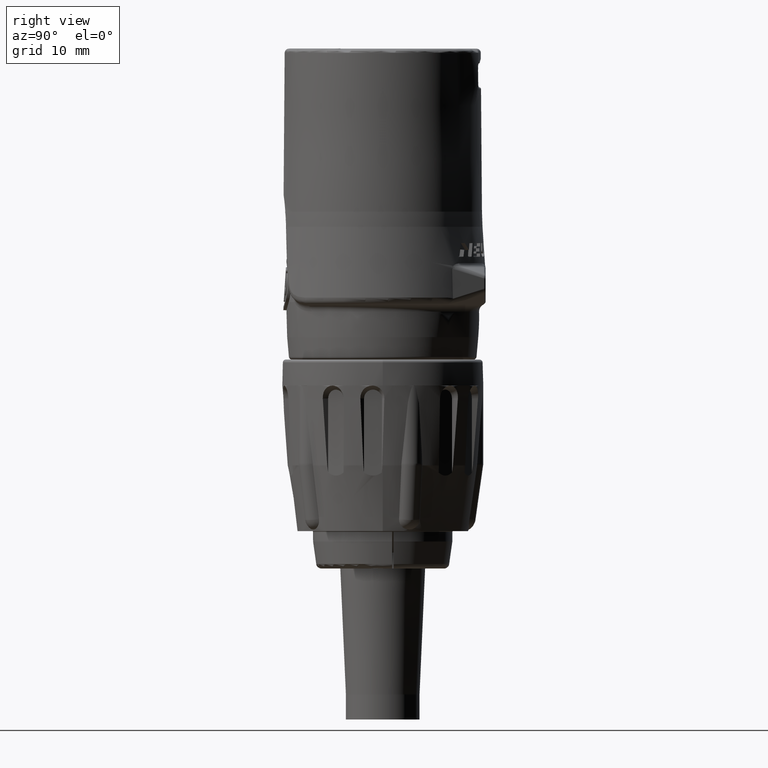
[diagram: clean part render]
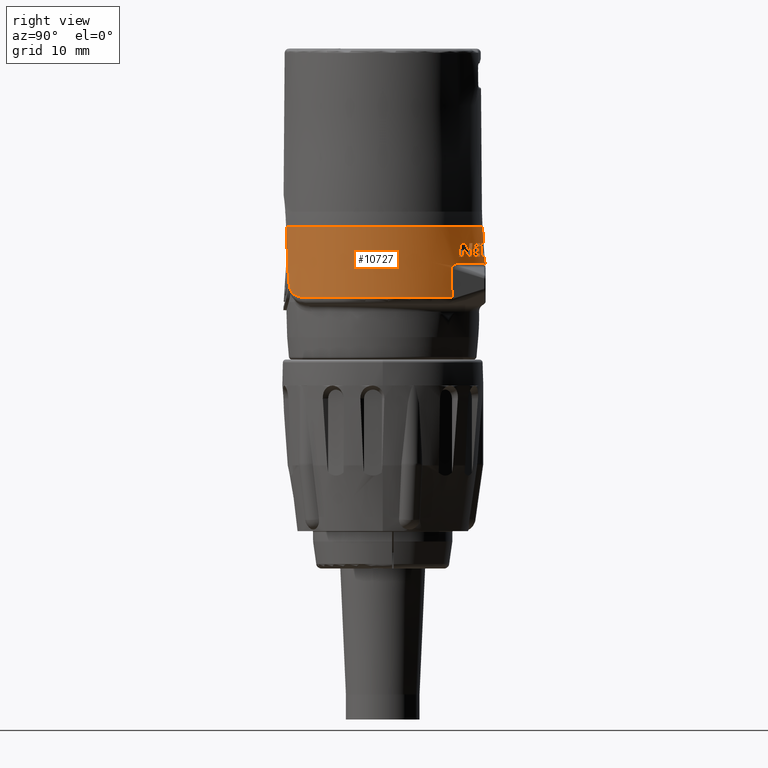
[diagram: same view with one face highlighted and labeled with its STEP entity id]
A machine part, right view. The second image highlights one B-rep face of the part: STEP entity #10727.
In plain terms, the highlighted conical surface has half-angle 3.778 deg.
Its self-contained STEP definition (entity closure, byte-faithful):
#456=CARTESIAN_POINT('',(-2.472295619619E0,-9.274175472965E0,
-2.227624171302E0));
#458=CARTESIAN_POINT('',(0.E0,0.E0,-2.227624171300E0));
#459=DIRECTION('',(0.E0,0.E0,-1.E0));
#460=DIRECTION('',(-2.575830977608E-1,-9.662561501734E-1,0.E0));
#461=AXIS2_PLACEMENT_3D('',#458,#459,#460);
#639=CARTESIAN_POINT('',(0.E0,0.E0,-4.114000173924E0));
#640=DIRECTION('',(0.E0,0.E0,-1.E0));
#641=DIRECTION('',(2.674273664308E-1,9.635780215861E-1,0.E0));
#642=AXIS2_PLACEMENT_3D('',#639,#640,#641);
#644=CARTESIAN_POINT('',(2.515959321396E0,9.369981644947E0,-3.8E0));
#645=CARTESIAN_POINT('',(2.525308802736E0,9.369857048834E0,-3.834892739385E0));
#646=CARTESIAN_POINT('',(2.544007085607E0,9.369581573767E0,-3.904675681104E0));
#647=CARTESIAN_POINT('',(2.572052650505E0,9.369089515261E0,-4.009343154232E0));
#648=CARTESIAN_POINT('',(2.590748049445E0,9.368708923300E0,-4.079115332913E0));
#649=CARTESIAN_POINT('',(2.600095367820E0,9.368505489534E0,-4.114E0));
#651=CARTESIAN_POINT('',(0.E0,0.E0,-3.799999015578E0));
#652=DIRECTION('',(0.E0,0.E0,-1.E0));
#653=DIRECTION('',(2.593268067561E-1,9.657896289036E-1,0.E0));
#654=AXIS2_PLACEMENT_3D('',#651,#652,#653);
#656=CARTESIAN_POINT('',(4.087959321396E0,8.798590564413E0,-3.8E0));
#657=CARTESIAN_POINT('',(4.127413205045E0,8.790981608878E0,-3.947243898332E0));
#658=CARTESIAN_POINT('',(4.205821372125E0,8.775341806747E0,-4.239867150469E0));
#659=CARTESIAN_POINT('',(4.321930054149E0,8.750664113468E0,-4.673190651339E0));
#660=CARTESIAN_POINT('',(4.398338871301E0,8.733429763588E0,-4.958352249875E0));
#661=CARTESIAN_POINT('',(4.436293271557E0,8.724624637178E0,-5.1E0));
#663=CARTESIAN_POINT('',(0.E0,0.E0,-5.100001033137E0));
#664=DIRECTION('',(0.E0,0.E0,-1.E0));
#665=DIRECTION('',(2.926410475036E-1,9.562223681320E-1,0.E0));
#666=AXIS2_PLACEMENT_3D('',#663,#664,#665);
#668=CARTESIAN_POINT('',(2.782836717058E0,9.362852613046E0,-4.796E0));
#669=CARTESIAN_POINT('',(2.791889956297E0,9.362489494986E0,-4.829787148814E0));
#670=CARTESIAN_POINT('',(2.809994768143E0,9.361738617191E0,-4.897355226514E0));
#671=CARTESIAN_POINT('',(2.837147148940E0,9.360538381580E0,-4.998689291193E0));
#672=CARTESIAN_POINT('',(2.855245144527E0,9.359688970353E0,-5.066231930212E0));
#673=CARTESIAN_POINT('',(2.864293271557E0,9.359251952235E0,-5.1E0));
#675=CARTESIAN_POINT('',(0.E0,0.E0,-4.795999824202E0));
#676=DIRECTION('',(0.E0,0.E0,-1.E0));
#677=DIRECTION('',(2.849030995701E-1,9.585563227351E-1,0.E0));
#678=AXIS2_PLACEMENT_3D('',#675,#676,#677);
#680=CARTESIAN_POINT('',(3.763049347115E0,9.000523536290E0,-4.612E0));
#681=CARTESIAN_POINT('',(3.768539983023E0,8.999694654842E0,-4.632491332173E0));
#682=CARTESIAN_POINT('',(3.779512880707E0,8.998028489044E0,-4.673442743842E0));
#683=CARTESIAN_POINT('',(3.795947109019E0,8.995504139488E0,-4.734776118883E0));
#684=CARTESIAN_POINT('',(3.806886495792E0,8.993804581131E0,-4.775602466120E0));
#685=CARTESIAN_POINT('',(3.812351998523E0,8.992950655195E0,-4.796E0));
#687=CARTESIAN_POINT('',(0.E0,0.E0,-4.612000061243E0));
#688=DIRECTION('',(0.E0,0.E0,-1.E0));
#689=DIRECTION('',(3.051659544043E-1,9.522991863236E-1,0.E0));
#690=AXIS2_PLACEMENT_3D('',#687,#688,#689);
#692=CARTESIAN_POINT('',(2.892913300692E0,9.294991629047E0,-4.298E0));
#693=CARTESIAN_POINT('',(2.902265265954E0,9.294494884666E0,-4.332902009507E0));
#694=CARTESIAN_POINT('',(2.920966860941E0,9.293474927232E0,-4.402697312215E0));
#695=CARTESIAN_POINT('',(2.949012428502E0,9.291865594E0,-4.507364795277E0));
#696=CARTESIAN_POINT('',(2.967704513993E0,9.290739810240E0,-4.577124608E0));
#697=CARTESIAN_POINT('',(2.977049347115E0,9.290163696134E0,-4.612E0));
#699=CARTESIAN_POINT('',(0.E0,0.E0,-4.297999939747E0));
#700=DIRECTION('',(0.E0,0.E0,-1.E0));
#701=DIRECTION('',(2.971731469109E-1,9.548236071417E-1,0.E0));
#702=AXIS2_PLACEMENT_3D('',#699,#700,#701);
#704=CARTESIAN_POINT('',(3.629610649285E0,9.019718264103E0,-4.114E0));
#705=CARTESIAN_POINT('',(3.635100672023E0,9.018967525595E0,-4.134489043793E0));
#706=CARTESIAN_POINT('',(3.646072752223E0,9.017457534449E0,-4.175437404569E0));
#707=CARTESIAN_POINT('',(3.662506985729E0,9.015167107707E0,-4.236770798998E0));
#708=CARTESIAN_POINT('',(3.673447187083E0,9.013623269651E0,-4.277600186291E0));
#709=CARTESIAN_POINT('',(3.678913300692E0,9.012847145901E0,-4.298E0));
#711=CARTESIAN_POINT('',(4.413036042045E0,8.640122697345E0,-3.8E0));
#712=CARTESIAN_POINT('',(4.452568207434E0,8.630871450836E0,-3.947536049766E0));
#713=CARTESIAN_POINT('',(4.531080674925E0,8.611958711733E0,-4.240548580152E0));
#714=CARTESIAN_POINT('',(4.647185022738E0,8.582413087819E0,-4.673855904780E0));
#715=CARTESIAN_POINT('',(4.723491954992E0,8.561962238441E0,-4.958637240628E0));
#716=CARTESIAN_POINT('',(4.761369992205E0,8.551557100799E0,-5.1E0));
#718=CARTESIAN_POINT('',(0.E0,0.E0,-3.799999980192E0));
#719=DIRECTION('',(0.E0,0.E0,-1.E0));
#720=DIRECTION('',(4.548636916149E-1,8.905610714883E-1,0.E0));
#721=AXIS2_PLACEMENT_3D('',#718,#719,#720);
#723=CARTESIAN_POINT('',(4.955520760580E0,8.340828575449E0,-3.8E0));
#724=CARTESIAN_POINT('',(4.974983293572E0,8.334844719333E0,-3.872635161970E0));
#725=CARTESIAN_POINT('',(5.013753169950E0,8.322783873439E0,-4.017326309586E0));
#726=CARTESIAN_POINT('',(5.071440611314E0,8.304421161278E0,-4.232618771731E0));
#727=CARTESIAN_POINT('',(5.109590496190E0,8.292002256034E0,-4.374996081204E0));
#728=CARTESIAN_POINT('',(5.128588037860E0,8.285749831379E0,-4.445895871938E0));
#730=CARTESIAN_POINT('',(5.128588037860E0,8.285749831379E0,-4.445895871938E0));
#731=CARTESIAN_POINT('',(5.186159324208E0,8.244328651040E0,-4.371388369501E0));
#732=CARTESIAN_POINT('',(5.299886462622E0,8.160691541277E0,-4.224205144449E0));
#733=CARTESIAN_POINT('',(5.466163941855E0,8.033064181494E0,-4.009012459580E0));
#734=CARTESIAN_POINT('',(5.574293196856E0,7.946516406545E0,-3.869073981598E0));
#735=CARTESIAN_POINT('',(5.627666049840E0,7.902909727756E0,-3.8E0));
#737=CARTESIAN_POINT('',(0.E0,0.E0,-3.799999971958E0));
#738=DIRECTION('',(0.E0,0.E0,-1.E0));
#739=DIRECTION('',(5.800589277353E-1,8.145745149184E-1,0.E0));
#740=AXIS2_PLACEMENT_3D('',#737,#738,#739);
#742=CARTESIAN_POINT('',(6.151666049840E0,7.502240475006E0,-3.8E0));
#743=CARTESIAN_POINT('',(6.191649808559E0,7.482198200233E0,-3.949221419018E0));
#744=CARTESIAN_POINT('',(6.270763510219E0,7.441780262332E0,-4.244477750754E0));
#745=CARTESIAN_POINT('',(6.386815677122E0,7.380276765977E0,-4.677590334753E0));
#746=CARTESIAN_POINT('',(6.462550414458E0,7.338690612950E0,-4.960236244034E0));
#747=CARTESIAN_POINT('',(6.5E0,7.317771043898E0,-5.1E0));
#749=CARTESIAN_POINT('',(0.E0,0.E0,-5.100000036749E0));
#750=DIRECTION('',(0.E0,0.E0,-1.E0));
#751=DIRECTION('',(6.086714408051E-1,7.934223825607E-1,0.E0));
#752=AXIS2_PLACEMENT_3D('',#749,#750,#751);
#754=CARTESIAN_POINT('',(5.784448004185E0,7.842626553505E0,-4.454104128062E0));
#755=CARTESIAN_POINT('',(5.803962398767E0,7.834209528949E0,-4.526932840121E0));
#756=CARTESIAN_POINT('',(5.842801388670E0,7.817293416210E0,-4.671881924929E0));
#757=CARTESIAN_POINT('',(5.900487290918E0,7.791684108565E0,-4.887168642979E0));
#758=CARTESIAN_POINT('',(5.938568911559E0,7.774458143436E0,-5.029291184890E0));
#759=CARTESIAN_POINT('',(5.957515281465E0,7.765808697233E0,-5.1E0));
#761=CARTESIAN_POINT('',(5.285369992205E0,8.237999580991E0,-5.1E0));
#762=CARTESIAN_POINT('',(5.342947602444E0,8.195212139356E0,-5.025484313320E0));
#763=CARTESIAN_POINT('',(5.456683637073E0,8.108826115236E0,-4.878289663398E0));
#764=CARTESIAN_POINT('',(5.622964981894E0,7.977022165135E0,-4.663091975400E0));
#765=CARTESIAN_POINT('',(5.731083511800E0,7.887653465753E0,-4.523167289556E0));
#766=CARTESIAN_POINT('',(5.784448004185E0,7.842626553505E0,-4.454104128062E0));
#768=CARTESIAN_POINT('',(0.E0,0.E0,-5.100000018723E0));
#769=DIRECTION('',(0.E0,0.E0,-1.E0));
#770=DIRECTION('',(4.864628618542E-1,8.737012555998E-1,0.E0));
#771=AXIS2_PLACEMENT_3D('',#768,#769,#770);
#773=CARTESIAN_POINT('',(0.E0,0.E0,-3.799999588779E0));
#774=DIRECTION('',(0.E0,0.E0,-1.E0));
#775=DIRECTION('',(-3.219305806050E-1,9.467632762583E-1,0.E0));
#776=AXIS2_PLACEMENT_3D('',#773,#774,#775);
#778=CARTESIAN_POINT('',(-1.813334048058E0,9.530919523515E0,-3.8E0));
#779=CARTESIAN_POINT('',(-1.775628524348E0,9.547552757131E0,-3.940718930210E0));
#780=CARTESIAN_POINT('',(-1.699552654774E0,9.580605034799E0,-4.224637931105E0));
#781=CARTESIAN_POINT('',(-1.583461580301E0,9.629477422633E0,-4.657895719014E0));
#782=CARTESIAN_POINT('',(-1.504711367369E0,9.661566125984E0,-4.951795524700E0));
#783=CARTESIAN_POINT('',(-1.465000097898E0,9.677476311729E0,-5.1E0));
#785=CARTESIAN_POINT('',(0.E0,0.E0,-5.100000010833E0));
#786=DIRECTION('',(0.E0,0.E0,-1.E0));
#787=DIRECTION('',(-2.051020631729E-1,9.787405905970E-1,0.E0));
#788=AXIS2_PLACEMENT_3D('',#785,#786,#787);
#790=CARTESIAN_POINT('',(-2.156823405457E0,9.509403611677E0,-4.542660798231E0));
#791=CARTESIAN_POINT('',(-2.140417708804E0,9.517270559845E0,-4.603887691671E0));
#792=CARTESIAN_POINT('',(-2.107481412132E0,9.532965068354E0,-4.726807624607E0));
#793=CARTESIAN_POINT('',(-2.057705657079E0,9.556382521356E0,-4.912573271454E0));
#794=CARTESIAN_POINT('',(-2.024267161908E0,9.571911551327E0,-5.037367434017E0));
#795=CARTESIAN_POINT('',(-2.007484816433E0,9.579654365513E0,-5.1E0));
#797=CARTESIAN_POINT('',(-2.644000097898E0,9.423854653656E0,-5.1E0));
#798=CARTESIAN_POINT('',(-2.590298470070E0,9.434707703076E0,-5.038564338460E0));
#799=CARTESIAN_POINT('',(-2.482601931357E0,9.455522940946E0,-4.915357509058E0));
#800=CARTESIAN_POINT('',(-2.320164313734E0,9.484056289656E0,-4.729525851795E0));
#801=CARTESIAN_POINT('',(-2.211357600852E0,9.501259349400E0,-4.605048932562E0));
#802=CARTESIAN_POINT('',(-2.156823405457E0,9.509403611677E0,-4.542660798231E0));
#804=CARTESIAN_POINT('',(0.E0,0.E0,-5.100000034650E0));
#805=DIRECTION('',(0.E0,0.E0,-1.E0));
#806=DIRECTION('',(-3.412401253370E-1,9.399761576019E-1,0.E0));
#807=AXIS2_PLACEMENT_3D('',#804,#805,#806);
#809=CARTESIAN_POINT('',(-3.339968207898E0,9.200238335018E0,-5.1E0));
#810=CARTESIAN_POINT('',(-3.286463434105E0,9.215361884290E0,-5.038789543139E0));
#811=CARTESIAN_POINT('',(-3.179029392376E0,9.244726409089E0,-4.915882984203E0));
#812=CARTESIAN_POINT('',(-3.016592439666E0,9.286099480525E0,-4.730052087527E0));
#813=CARTESIAN_POINT('',(-2.907522826814E0,9.311860318245E0,-4.605274436890E0));
#814=CARTESIAN_POINT('',(-2.852791515457E0,9.324281464083E0,-4.542660798231E0));
#816=CARTESIAN_POINT('',(-3.123334048058E0,9.185390125510E0,-3.8E0));
#817=CARTESIAN_POINT('',(-3.136780386990E0,9.180695215242E0,-3.798240688804E0));
#818=CARTESIAN_POINT('',(-3.163057152417E0,9.171640193541E0,-3.797455729444E0));
#819=CARTESIAN_POINT('',(-3.202151340561E0,9.158455667814E0,-3.803047337425E0));
#820=CARTESIAN_POINT('',(-3.241150353172E0,9.145593765452E0,-3.815449757220E0));
#821=CARTESIAN_POINT('',(-3.277550712291E0,9.133906017514E0,-3.833974563195E0));
#822=CARTESIAN_POINT('',(-3.309654618998E0,9.123955389347E0,-3.857305328886E0));
#823=CARTESIAN_POINT('',(-3.337313587498E0,9.115832932440E0,-3.885227630797E0));
#824=CARTESIAN_POINT('',(-3.359473928452E0,9.109930377242E0,-3.917143820630E0));
#825=CARTESIAN_POINT('',(-3.375210752713E0,9.106624807529E0,-3.952885874001E0));
#826=CARTESIAN_POINT('',(-3.383069470294E0,9.105908280207E0,-3.984148066055E0));
#827=CARTESIAN_POINT('',(-3.386633052659E0,9.106422495535E0,-4.010252019992E0));
#828=CARTESIAN_POINT('',(-3.388364352816E0,9.107671077189E0,-4.037114013078E0));
#829=CARTESIAN_POINT('',(-3.387091893895E0,9.110573241464E0,-4.071581831132E0));
#830=CARTESIAN_POINT('',(-3.381130836027E0,9.115294677573E0,-4.107163560253E0));
#831=CARTESIAN_POINT('',(-3.372983242992E0,9.120398399059E0,-4.136792150198E0));
#832=CARTESIAN_POINT('',(-3.362400946868E0,9.126425788352E0,-4.166887119726E0));
#833=CARTESIAN_POINT('',(-3.344849955828E0,9.135495016336E0,-4.204035561128E0));
#834=CARTESIAN_POINT('',(-3.316169381085E0,9.148988620383E0,-4.247229812374E0));
#835=CARTESIAN_POINT('',(-3.280238781599E0,9.164778242339E0,-4.287670842701E0));
#836=CARTESIAN_POINT('',(-3.238822198749E0,9.182080653520E0,-4.324442931060E0));
#837=CARTESIAN_POINT('',(-3.176127541369E0,9.207227851292E0,-4.370207132220E0));
#838=CARTESIAN_POINT('',(-3.085479889190E0,9.241772496788E0,-4.422058917649E0));
#839=CARTESIAN_POINT('',(-2.965526088701E0,9.285014905536E0,-4.480432833355E0));
#840=CARTESIAN_POINT('',(-2.889193788631E0,9.311572339541E0,-4.519901534460E0));
#841=CARTESIAN_POINT('',(-2.852791515457E0,9.324281464083E0,-4.542660798231E0));
#843=CARTESIAN_POINT('',(-3.929438560816E0,8.870519710273E0,-3.8E0));
#844=CARTESIAN_POINT('',(-3.891732613069E0,8.897386402171E0,-3.940720512742E0));
#845=CARTESIAN_POINT('',(-3.815656356512E0,8.950897287407E0,-4.224640952365E0));
#846=CARTESIAN_POINT('',(-3.699573111620E0,9.030427203856E0,-4.657869520013E0));
#847=CARTESIAN_POINT('',(-3.620818969305E0,9.082956638218E0,-4.951783995731E0));
#848=CARTESIAN_POINT('',(-3.581104610656E0,9.109086826815E0,-5.1E0));
#850=CARTESIAN_POINT('',(0.E0,0.E0,-5.100000015243E0));
#851=DIRECTION('',(0.E0,0.E0,-1.E0));
#852=DIRECTION('',(-4.213016567655E-1,9.069205665364E-1,0.E0));
#853=AXIS2_PLACEMENT_3D('',#850,#851,#852);
#855=CARTESIAN_POINT('',(-4.471923279351E0,8.609791490923E0,-3.8E0));
#856=CARTESIAN_POINT('',(-4.434248042105E0,8.639823072312E0,-3.940605899592E0));
#857=CARTESIAN_POINT('',(-4.358212731589E0,8.699653196265E0,-4.224373558643E0));
#858=CARTESIAN_POINT('',(-4.242126133833E0,8.788630368678E0,-4.657614639732E0));
#859=CARTESIAN_POINT('',(-4.163332951137E0,8.847436053040E0,-4.951674783620E0));
#860=CARTESIAN_POINT('',(-4.123589329191E0,8.876698941335E0,-5.1E0));
#862=CARTESIAN_POINT('',(0.E0,0.E0,-3.799999982861E0));
#863=DIRECTION('',(0.E0,0.E0,-1.E0));
#864=DIRECTION('',(-4.609333601821E-1,8.874347511064E-1,0.E0));
#865=AXIS2_PLACEMENT_3D('',#862,#863,#864);
#867=CARTESIAN_POINT('',(-4.797E0,8.432994624306E0,-3.8E0));
#868=CARTESIAN_POINT('',(-4.759352166503E0,8.465084768782E0,-3.940503627406E0));
#869=CARTESIAN_POINT('',(-4.683353388808E0,8.529024302552E0,-4.224134906980E0));
#870=CARTESIAN_POINT('',(-4.567265195116E0,8.624141878180E0,-4.657381943914E0));
#871=CARTESIAN_POINT('',(-4.488436393032E0,8.687024872750E0,-4.951575058573E0));
#872=CARTESIAN_POINT('',(-4.448666049840E0,8.718322282866E0,-5.1E0));
#874=CARTESIAN_POINT('',(0.E0,0.E0,-5.100000019407E0));
#875=DIRECTION('',(0.E0,0.E0,-1.E0));
#876=DIRECTION('',(-5.099392592267E-1,8.602104114107E-1,0.E0));
#877=AXIS2_PLACEMENT_3D('',#874,#875,#876);
#879=CARTESIAN_POINT('',(-5.140489357399E0,8.285892433442E0,-4.542660798231E0));
#880=CARTESIAN_POINT('',(-5.124099029835E0,8.300814563502E0,-4.603830333449E0));
#881=CARTESIAN_POINT('',(-5.091183209500E0,8.330609899057E0,-4.726673848067E0));
#882=CARTESIAN_POINT('',(-5.041405356812E0,8.375150541392E0,-4.912447323389E0));
#883=CARTESIAN_POINT('',(-5.007947569916E0,8.404742611190E0,-5.037313483242E0));
#884=CARTESIAN_POINT('',(-4.991150768374E0,8.419512281496E0,-5.1E0));
#886=CARTESIAN_POINT('',(-5.629048090942E0,8.007096267735E0,-5.1E0));
#887=CARTESIAN_POINT('',(-5.576706130922E0,8.039072997216E0,-5.040289213530E0));
#888=CARTESIAN_POINT('',(-5.470727242258E0,8.102413605059E0,-4.919390393873E0));
#889=CARTESIAN_POINT('',(-5.307904998189E0,8.195408889647E0,-4.733645645150E0));
#890=CARTESIAN_POINT('',(-5.196728694680E0,8.255987961526E0,-4.606817644065E0));
#891=CARTESIAN_POINT('',(-5.140489357399E0,8.285892433442E0,-4.542660798231E0));
#893=CARTESIAN_POINT('',(0.E0,0.E0,-5.100000026583E0));
#894=DIRECTION('',(0.E0,0.E0,-1.E0));
#895=DIRECTION('',(-6.285075675017E-1,7.778034697744E-1,0.E0));
#896=AXIS2_PLACEMENT_3D('',#893,#894,#895);
#898=CARTESIAN_POINT('',(-6.151666049840E0,7.612934904632E0,-5.1E0));
#899=CARTESIAN_POINT('',(-6.094398752243E0,7.653663336986E0,-5.034670475137E0));
#900=CARTESIAN_POINT('',(-5.978180132195E0,7.734377906626E0,-4.902090266858E0));
#901=CARTESIAN_POINT('',(-5.798938057628E0,7.852908471999E0,-4.697614062658E0));
#902=CARTESIAN_POINT('',(-5.675888468869E0,7.930261203536E0,-4.557241312065E0));
#903=CARTESIAN_POINT('',(-5.613498382547E0,7.968463486853E0,-4.486067800014E0));
#905=CARTESIAN_POINT('',(-6.5E0,7.202540533590E0,-3.799986580443E0));
#906=CARTESIAN_POINT('',(-6.408085765253E0,7.291817028255E0,-3.871120833364E0));
#907=CARTESIAN_POINT('',(-6.219848420357E0,7.467823551683E0,-4.016801896098E0));
#908=CARTESIAN_POINT('',(-5.924259454462E0,7.723531460556E0,-4.245564063194E0));
#909=CARTESIAN_POINT('',(-5.718525615206E0,7.887909634202E0,-4.404785137408E0));
#910=CARTESIAN_POINT('',(-5.613498382547E0,7.968463486853E0,-4.486067800014E0));
#912=CARTESIAN_POINT('',(0.E0,0.E0,-3.799986506744E0));
#913=DIRECTION('',(0.E0,0.E0,-1.E0));
#914=DIRECTION('',(-6.699728344372E-1,7.423856148366E-1,0.E0));
#915=AXIS2_PLACEMENT_3D('',#912,#913,#914);
#917=CARTESIAN_POINT('',(-5.857882863011E0,7.733808796528E0,-3.799986580443E0));
#918=CARTESIAN_POINT('',(-5.788255967235E0,7.791010911557E0,-3.853872218809E0));
#919=CARTESIAN_POINT('',(-5.646961828214E0,7.903946739292E0,-3.963222456119E0));
#920=CARTESIAN_POINT('',(-5.428908227693E0,8.068733942569E0,-4.131978472465E0));
#921=CARTESIAN_POINT('',(-5.279542275814E0,8.175322136650E0,-4.247575854483E0));
#922=CARTESIAN_POINT('',(-5.203863538901E0,8.227763590841E0,-4.306145132975E0));
#924=CARTESIAN_POINT('',(-5.339484718535E0,8.100401858803E0,-3.8E0));
#925=CARTESIAN_POINT('',(-5.324588775401E0,8.114617721616E0,-3.855592416602E0));
#926=CARTESIAN_POINT('',(-5.294681556129E0,8.143007480989E0,-3.967207679011E0));
#927=CARTESIAN_POINT('',(-5.249475719129E0,8.185461932010E0,-4.135918159494E0));
#928=CARTESIAN_POINT('',(-5.219106203546E0,8.213678002036E0,-4.249258734079E0));
#929=CARTESIAN_POINT('',(-5.203863538901E0,8.227763590841E0,-4.306145132975E0));
#931=CARTESIAN_POINT('',(0.E0,0.E0,-3.799999977367E0));
#932=DIRECTION('',(0.E0,0.E0,-1.E0));
#933=DIRECTION('',(-5.503552899307E-1,8.349305688770E-1,0.E0));
#934=AXIS2_PLACEMENT_3D('',#931,#932,#933);
#936=CARTESIAN_POINT('',(-1.488257327409E0,9.587058853527E0,-3.8E0));
#937=CARTESIAN_POINT('',(-1.478966175947E0,9.590818463668E0,-3.834675049319E0));
#938=CARTESIAN_POINT('',(-1.460345682976E0,9.598323341771E0,-3.904167675182E0));
#939=CARTESIAN_POINT('',(-1.432300601501E0,9.609536755461E0,-4.008833344148E0));
#940=CARTESIAN_POINT('',(-1.413527150732E0,9.616982770028E0,-4.078896816217E0));
#941=CARTESIAN_POINT('',(-1.404121280986E0,9.620698231286E0,-4.114E0));
#943=CARTESIAN_POINT('',(0.E0,0.E0,-3.799999268835E0));
#944=DIRECTION('',(0.E0,0.E0,-1.E0));
#945=DIRECTION('',(-1.533987521445E-1,9.881643703557E-1,0.E0));
#946=AXIS2_PLACEMENT_3D('',#943,#944,#945);
#948=CARTESIAN_POINT('',(8.374267259063E-2,9.701525369670E0,-3.8E0));
#949=CARTESIAN_POINT('',(9.307463619861E-2,9.703738175094E0,-3.834726699965E0));
#950=CARTESIAN_POINT('',(1.117676177947E-1,9.708143858032E0,-3.904288218886E0));
#951=CARTESIAN_POINT('',(1.398941925551E-1,9.714691997755E0,-4.008954628206E0));
#952=CARTESIAN_POINT('',(1.587034407909E-1,9.719016805278E0,-4.078948806040E0));
#953=CARTESIAN_POINT('',(1.681226043386E-1,9.721168953326E0,-4.114E0));
#955=CARTESIAN_POINT('',(0.E0,0.E0,-4.114000010782E0));
#956=DIRECTION('',(0.E0,0.E0,-1.E0));
#957=DIRECTION('',(-3.927720016933E-2,9.992283530539E-1,0.E0));
#958=AXIS2_PLACEMENT_3D('',#955,#956,#957);
#960=CARTESIAN_POINT('',(-3.818773956614E-1,9.715120209440E0,-4.114E0));
#961=CARTESIAN_POINT('',(-3.529827348263E-1,9.723382754473E0,
-4.221836342304E0));
#962=CARTESIAN_POINT('',(-2.948864121769E-1,9.739732391925E0,
-4.438654767418E0));
#963=CARTESIAN_POINT('',(-2.068240944137E-1,9.763710487766E0,
-4.767307811477E0));
#964=CARTESIAN_POINT('',(-1.474971301951E-1,9.779320583262E0,
-4.988719059012E0));
#965=CARTESIAN_POINT('',(-1.176794919243E-1,9.787028383942E0,-5.1E0));
#967=CARTESIAN_POINT('',(0.E0,0.E0,-5.100000010039E0));
#968=DIRECTION('',(0.E0,0.E0,-1.E0));
#969=DIRECTION('',(-6.744810246619E-2,9.977227838802E-1,0.E0));
#970=AXIS2_PLACEMENT_3D('',#967,#968,#969);
#972=CARTESIAN_POINT('',(-9.243621141963E-1,9.678581802673E0,-4.114E0));
#973=CARTESIAN_POINT('',(-8.955132584207E-1,9.688479371714E0,
-4.221665395495E0));
#974=CARTESIAN_POINT('',(-8.374780797928E-1,9.708117616012E0,
-4.438255633610E0));
#975=CARTESIAN_POINT('',(-7.494178191169E-1,9.737081543536E0,
-4.766901000656E0));
#976=CARTESIAN_POINT('',(-6.900285946892E-1,9.756051104321E0,
-4.988544600717E0));
#977=CARTESIAN_POINT('',(-6.601642104592E-1,9.765447059205E0,-5.1E0));
#979=CARTESIAN_POINT('',(0.E0,0.E0,-4.114000006470E0));
#980=DIRECTION('',(0.E0,0.E0,-1.E0));
#981=DIRECTION('',(-1.444179551916E-1,9.895167781388E-1,0.E0));
#982=AXIS2_PLACEMENT_3D('',#979,#980,#981);
#984=CARTESIAN_POINT('',(4.088826007474E-1,9.693266856554E0,-3.8E0));
#985=CARTESIAN_POINT('',(4.329493829030E-1,9.698171191542E0,-3.889558849365E0));
#986=CARTESIAN_POINT('',(4.812611996953E-1,9.707840307764E0,-4.069339873899E0));
#987=CARTESIAN_POINT('',(5.542634675893E-1,9.721915919903E0,-4.341000583335E0));
#988=CARTESIAN_POINT('',(6.032884653057E-1,9.731008075269E0,-4.523435539787E0));
#989=CARTESIAN_POINT('',(6.278901303657E-1,9.735479658611E0,-4.614984829634E0));
#991=CARTESIAN_POINT('',(0.E0,0.E0,-3.799999989669E0));
#992=DIRECTION('',(0.E0,0.E0,-1.E0));
#993=DIRECTION('',(4.214464768497E-2,9.991115196371E-1,0.E0));
#994=AXIS2_PLACEMENT_3D('',#991,#992,#993);
#996=CARTESIAN_POINT('',(9.514727993275E-1,9.655118168397E0,-3.8E0));
#997=CARTESIAN_POINT('',(9.749056875419E-1,9.658595333909E0,-3.887199962680E0));
#998=CARTESIAN_POINT('',(1.021914702335E0,9.665406856299E0,-4.062132914687E0));
#999=CARTESIAN_POINT('',(1.092858982265E0,9.675188373646E0,-4.326135307614E0));
#1000=CARTESIAN_POINT('',(1.140440108878E0,9.681413540825E0,-4.503197240976E0));
#1001=CARTESIAN_POINT('',(1.164302079310E0,9.684450920982E0,-4.591993931854E0));
#1003=CARTESIAN_POINT('',(1.417325448253E0,9.663616174794E0,-4.786E0));
#1004=CARTESIAN_POINT('',(1.398338488147E0,9.666400919268E0,-4.786E0));
#1005=CARTESIAN_POINT('',(1.360350256497E0,9.671580078734E0,-4.781859012327E0));
#1006=CARTESIAN_POINT('',(1.305930080863E0,9.677843515187E0,-4.763441986589E0));
#1007=CARTESIAN_POINT('',(1.256741870404E0,9.682358896311E0,-4.733655126801E0));
#1008=CARTESIAN_POINT('',(1.215153451226E0,9.685008283885E0,-4.693910256784E0));
#1009=CARTESIAN_POINT('',(1.183159130153E0,9.685776449910E0,-4.646099544698E0));
#1010=CARTESIAN_POINT('',(1.169245020157E0,9.685080105838E0,-4.610387919542E0));
#1011=CARTESIAN_POINT('',(1.164302079310E0,9.684450920982E0,-4.591993931854E0));
#1013=CARTESIAN_POINT('',(0.E0,0.E0,-4.785999999704E0));
#1014=DIRECTION('',(0.E0,0.E0,-1.E0));
#1015=DIRECTION('',(1.451136938930E-1,9.894149866688E-1,0.E0));
#1016=AXIS2_PLACEMENT_3D('',#1013,#1014,#1015);
#1018=CARTESIAN_POINT('',(1.841762881174E0,9.574000947988E0,-4.521648000528E0));
#1019=CARTESIAN_POINT('',(1.848288900682E0,9.574383397127E0,-4.546003436906E0));
#1020=CARTESIAN_POINT('',(1.851488300958E0,9.576351931873E0,-4.584486060011E0));
#1021=CARTESIAN_POINT('',(1.841658454276E0,9.581655522436E0,-4.635142004529E0));
#1022=CARTESIAN_POINT('',(1.827402579659E0,9.586814063932E0,-4.671231078229E0));
#1023=CARTESIAN_POINT('',(1.807037623050E0,9.592864298057E0,-4.703767060973E0));
#1024=CARTESIAN_POINT('',(1.781073209560E0,9.599631606750E0,-4.732169839507E0));
#1025=CARTESIAN_POINT('',(1.755173299955E0,9.605711770785E0,-4.751740808855E0));
#1026=CARTESIAN_POINT('',(1.732259379204E0,9.610716998784E0,-4.764453797529E0));
#1027=CARTESIAN_POINT('',(1.714547410889E0,9.614413784632E0,-4.772220352991E0));
#1028=CARTESIAN_POINT('',(1.696425541582E0,9.618034281616E0,-4.778275801064E0));
#1029=CARTESIAN_POINT('',(1.677688751477E0,9.621616212147E0,-4.782687020356E0));
#1030=CARTESIAN_POINT('',(1.658596515088E0,9.625106898447E0,-4.785383303436E0));
#1031=CARTESIAN_POINT('',(1.645352564124E0,9.627416399890E0,-4.786E0));
#1032=CARTESIAN_POINT('',(1.638918457653E0,9.628511582231E0,-4.786E0));
#1034=CARTESIAN_POINT('',(1.648397882213E0,9.560825892960E0,-3.8E0));
#1035=CARTESIAN_POINT('',(1.669860583284E0,9.562493131680E0,-3.880099890865E0));
#1036=CARTESIAN_POINT('',(1.712800941509E0,9.565692141256E0,-4.040355490250E0));
#1037=CARTESIAN_POINT('',(1.777258450224E0,9.570084129416E0,-4.280914187705E0));
#1038=CARTESIAN_POINT('',(1.820256735394E0,9.572740607452E0,-4.441385971805E0));
#1039=CARTESIAN_POINT('',(1.841762881174E0,9.574000947988E0,-4.521648000528E0));
#1041=CARTESIAN_POINT('',(0.E0,0.E0,-3.799999988733E0));
#1042=DIRECTION('',(0.E0,0.E0,-1.E0));
#1043=DIRECTION('',(1.699048770075E-1,9.854604673801E-1,0.E0));
#1044=AXIS2_PLACEMENT_3D('',#1041,#1042,#1043);
#1046=CARTESIAN_POINT('',(2.190882600747E0,9.451277202755E0,-3.8E0));
#1047=CARTESIAN_POINT('',(2.209944409596E0,9.451680991077E0,-3.871139639108E0));
#1048=CARTESIAN_POINT('',(2.248070516607E0,9.452380243012E0,-4.013428207069E0));
#1049=CARTESIAN_POINT('',(2.305268664667E0,9.453104130155E0,-4.226894601729E0));
#1050=CARTESIAN_POINT('',(2.343403347629E0,9.453369994626E0,-4.369215176570E0));
#1051=CARTESIAN_POINT('',(2.362471588515E0,9.453448742639E0,-4.440378820366E0));
#1053=CARTESIAN_POINT('',(1.856326455539E0,9.610089757197E0,-5.1E0));
#1054=CARTESIAN_POINT('',(1.909888903022E0,9.599743403437E0,-5.1E0));
#1055=CARTESIAN_POINT('',(2.016985690904E0,9.576997931211E0,-5.083562730999E0));
#1056=CARTESIAN_POINT('',(2.164143198505E0,9.539754239037E0,-5.010420008885E0));
#1057=CARTESIAN_POINT('',(2.281062961502E0,9.504600882119E0,-4.896779950918E0));
#1058=CARTESIAN_POINT('',(2.357792805840E0,9.476021907915E0,-4.754119095588E0));
#1059=CARTESIAN_POINT('',(2.387953266188E0,9.457657349041E0,-4.596279154190E0));
#1060=CARTESIAN_POINT('',(2.375991200137E0,9.453504575925E0,-4.490834697841E0));
#1061=CARTESIAN_POINT('',(2.362471588515E0,9.453448742639E0,-4.440378820366E0));
#1063=CARTESIAN_POINT('',(0.E0,0.E0,-5.100000015525E0));
#1064=DIRECTION('',(0.E0,0.E0,-1.E0));
#1065=DIRECTION('',(1.287783581577E-1,9.916734011106E-1,0.E0));
#1066=AXIS2_PLACEMENT_3D('',#1063,#1064,#1065);
#1068=CARTESIAN_POINT('',(6.278901303657E-1,9.735479658611E0,
-4.614984829634E0));
#1069=CARTESIAN_POINT('',(6.384892099687E-1,9.737406140729E0,
-4.654426802700E0));
#1070=CARTESIAN_POINT('',(6.670895930981E-1,9.740621089877E0,
-4.731338027914E0));
#1071=CARTESIAN_POINT('',(7.307635947687E-1,9.743078585200E0,
-4.836800485969E0));
#1072=CARTESIAN_POINT('',(8.129876547418E-1,9.742691868379E0,
-4.928569903459E0));
#1073=CARTESIAN_POINT('',(9.107466531137E-1,9.739050320702E0,
-5.003379781617E0));
#1074=CARTESIAN_POINT('',(1.020896323794E0,9.731832711741E0,-5.058714461984E0));
#1075=CARTESIAN_POINT('',(1.138382958739E0,9.721053109092E0,-5.092372629520E0));
#1076=CARTESIAN_POINT('',(1.219761061135E0,9.711520961915E0,-5.1E0));
#1077=CARTESIAN_POINT('',(1.260448552722E0,9.706237298606E0,-5.1E0));
#1079=CARTESIAN_POINT('',(0.E0,0.E0,-9.051041951009E0));
#1080=DIRECTION('',(0.E0,0.E0,-1.E0));
#1081=DIRECTION('',(-6.774146293476E-1,-7.356014001794E-1,0.E0));
#1082=AXIS2_PLACEMENT_3D('',#1079,#1080,#1081);
#1084=CARTESIAN_POINT('',(-7.336693995132E0,6.596895840871E0,
-6.291403016966E0));
#1085=CARTESIAN_POINT('',(-7.356182106803E0,6.605364235936E0,
-6.596585615874E0));
#1086=CARTESIAN_POINT('',(-7.395242426789E0,6.622281960187E0,
-7.207913455681E0));
#1087=CARTESIAN_POINT('',(-7.454085916285E0,6.647599735025E0,
-8.127793110472E0));
#1088=CARTESIAN_POINT('',(-7.493484072899E0,6.664437946727E0,
-8.742971465733E0));
#1089=CARTESIAN_POINT('',(-7.513225567254E0,6.672846696451E0,
-9.051041951008E0));
#1091=CARTESIAN_POINT('',(-6.365574983143E0,7.489986292663E0,
-5.733483044353E0));
#1092=CARTESIAN_POINT('',(-6.411111584776E0,7.451285705696E0,
-5.733482992499E0));
#1093=CARTESIAN_POINT('',(-6.498074136982E0,7.376210291892E0,
-5.736542777585E0));
#1094=CARTESIAN_POINT('',(-6.615956127557E0,7.271644299065E0,
-5.748605096057E0));
#1095=CARTESIAN_POINT('',(-6.723549539920E0,7.173866173611E0,
-5.767051841838E0));
#1096=CARTESIAN_POINT('',(-6.820867597892E0,7.083508612145E0,
-5.790904032397E0));
#1097=CARTESIAN_POINT('',(-6.908588184618E0,7.000558516237E0,
-5.819386598142E0));
#1098=CARTESIAN_POINT('',(-6.987956713653E0,6.924362786086E0,
-5.852238671990E0));
#1099=CARTESIAN_POINT('',(-7.059645275125E0,6.854732063882E0,
-5.889389954976E0));
#1100=CARTESIAN_POINT('',(-7.123815556358E0,6.791935728249E0,
-5.930784943236E0));
#1101=CARTESIAN_POINT('',(-7.180818263930E0,6.736042065659E0,
-5.976767399305E0));
#1102=CARTESIAN_POINT('',(-7.231056136733E0,6.687070234395E0,
-6.028405711398E0));
#1103=CARTESIAN_POINT('',(-7.273002354449E0,6.647009015455E0,
-6.085860471512E0));
#1104=CARTESIAN_POINT('',(-7.304972470569E0,6.617827267001E0,
-6.146842877418E0));
#1105=CARTESIAN_POINT('',(-7.328315594615E0,6.599018920063E0,
-6.218496298306E0));
#1106=CARTESIAN_POINT('',(-7.335116371022E0,6.596206540997E0,
-6.266663479423E0));
#1107=CARTESIAN_POINT('',(-7.336693995132E0,6.596895840871E0,
-6.291403016966E0));
#1109=CARTESIAN_POINT('',(0.E0,0.E0,-5.733483104061E0));
#1110=DIRECTION('',(0.E0,0.E0,1.E0));
#1111=DIRECTION('',(-2.550984214168E-1,9.669150921310E-1,0.E0));
#1112=AXIS2_PLACEMENT_3D('',#1109,#1110,#1111);
#1114=CARTESIAN_POINT('',(1.424694510842E-5,9.843041314555E0,
-5.937482763422E0));
#1115=CARTESIAN_POINT('',(-7.732707986789E-2,9.843041500213E0,
-5.937483913878E0));
#1116=CARTESIAN_POINT('',(-2.272714014424E-1,9.840910015600E0,
-5.933082168865E0));
#1117=CARTESIAN_POINT('',(-4.342607834208E-1,9.832839973438E0,
-5.917654193651E0));
#1118=CARTESIAN_POINT('',(-6.339870880515E-1,9.820579879102E0,
-5.896941837385E0));
#1119=CARTESIAN_POINT('',(-8.281701846127E-1,9.804546075374E0,
-5.873644031625E0));
#1120=CARTESIAN_POINT('',(-1.021316562709E0,9.784705652155E0,
-5.849306986996E0));
#1121=CARTESIAN_POINT('',(-1.215594281050E0,9.760866003858E0,
-5.825101709950E0));
#1122=CARTESIAN_POINT('',(-1.408098877215E0,9.733433056067E0,
-5.802494756952E0));
#1123=CARTESIAN_POINT('',(-1.598766924853E0,9.702598003728E0,
-5.782233392683E0));
#1124=CARTESIAN_POINT('',(-1.797309477440E0,9.666667463026E0,
-5.764020342694E0));
#1125=CARTESIAN_POINT('',(-2.013292943529E0,9.623096433439E0,
-5.748268485021E0));
#1126=CARTESIAN_POINT('',(-2.248678698653E0,9.570229635069E0,
-5.736739516850E0));
#1127=CARTESIAN_POINT('',(-2.419087550425E0,9.527686852131E0,
-5.733482981848E0));
#1128=CARTESIAN_POINT('',(-2.507507698591E0,9.504359235027E0,
-5.733483134883E0));
#1130=CARTESIAN_POINT('',(2.507507362176E0,9.504359338064E0,-5.733483343991E0));
#1131=CARTESIAN_POINT('',(2.424103373436E0,9.526363580063E0,-5.733483592435E0));
#1132=CARTESIAN_POINT('',(2.263793177913E0,9.566504878507E0,-5.736384620364E0));
#1133=CARTESIAN_POINT('',(2.044532869659E0,9.616264074971E0,-5.746529699826E0));
#1134=CARTESIAN_POINT('',(1.843167950803E0,9.657702153916E0,-5.760398282998E0));
#1135=CARTESIAN_POINT('',(1.652104585149E0,9.693292866035E0,-5.777053493715E0));
#1136=CARTESIAN_POINT('',(1.461328548651E0,9.725200927362E0,-5.796587803935E0));
#1137=CARTESIAN_POINT('',(1.268192626947E0,9.753742288102E0,-5.818751567525E0));
#1138=CARTESIAN_POINT('',(1.076039581635E0,9.778370292539E0,-5.842409393019E0));
#1139=CARTESIAN_POINT('',(8.832179491901E-1,9.799287738602E0,
-5.866754856353E0));
#1140=CARTESIAN_POINT('',(6.874592102546E-1,9.816596591982E0,
-5.890761767472E0));
#1141=CARTESIAN_POINT('',(4.803382955328E-1,9.830503675466E0,
-5.913403826932E0));
#1142=CARTESIAN_POINT('',(2.554549619497E-1,9.840307421200E0,
-5.931822328551E0));
#1143=CARTESIAN_POINT('',(8.777247780644E-2,9.843041322690E0,
-5.937484837402E0));
#1144=CARTESIAN_POINT('',(1.424694510842E-5,9.843041314555E0,
-5.937482763422E0));
#1146=CARTESIAN_POINT('',(0.E0,0.E0,-5.733483104061E0));
#1147=DIRECTION('',(0.E0,0.E0,1.E0));
#1148=DIRECTION('',(6.475944717360E-1,7.619851705755E-1,0.E0));
#1149=AXIS2_PLACEMENT_3D('',#1146,#1147,#1148);
#1151=CARTESIAN_POINT('',(7.336694017699E0,6.596895850677E0,-6.291403370361E0));
#1152=CARTESIAN_POINT('',(7.335133422325E0,6.596216042411E0,-6.266949031326E0));
#1153=CARTESIAN_POINT('',(7.328242226014E0,6.599103416441E0,-6.218550454589E0));
#1154=CARTESIAN_POINT('',(7.305446501882E0,6.617351536177E0,-6.147276522077E0));
#1155=CARTESIAN_POINT('',(7.268648454272E0,6.651030207625E0,-6.078074127987E0));
#1156=CARTESIAN_POINT('',(7.221019219030E0,6.696786763113E0,-6.016589804952E0));
#1157=CARTESIAN_POINT('',(7.164916286447E0,6.751618465604E0,-5.962518161112E0));
#1158=CARTESIAN_POINT('',(7.100308587966E0,6.814983105124E0,-5.914267175793E0));
#1159=CARTESIAN_POINT('',(7.027099511910E0,6.886446791156E0,-5.871267414621E0));
#1160=CARTESIAN_POINT('',(6.945207381539E0,6.965562303514E0,-5.833376910214E0));
#1161=CARTESIAN_POINT('',(6.853339723409E0,7.053011832092E0,-5.800360600128E0));
#1162=CARTESIAN_POINT('',(6.750400660085E0,7.149173176284E0,-5.772675650880E0));
#1163=CARTESIAN_POINT('',(6.636288722643E0,7.253407884218E0,-5.751287239848E0));
#1164=CARTESIAN_POINT('',(6.509574352965E0,7.366217997243E0,-5.737114339067E0));
#1165=CARTESIAN_POINT('',(6.415215628689E0,7.447797769972E0,-5.733482989220E0));
#1166=CARTESIAN_POINT('',(6.365574970825E0,7.489986313237E0,-5.733483007193E0));
#1168=CARTESIAN_POINT('',(7.513225567254E0,6.672846696451E0,-9.051041951009E0));
#1169=CARTESIAN_POINT('',(7.493483543469E0,6.664437721220E0,-8.742963203857E0));
#1170=CARTESIAN_POINT('',(7.454084683868E0,6.647599207040E0,-8.127773858976E0));
#1171=CARTESIAN_POINT('',(7.395241203755E0,6.622281431705E0,-7.207894322010E0));
#1172=CARTESIAN_POINT('',(7.356181596786E0,6.605364014291E0,-6.596577628911E0));
#1173=CARTESIAN_POINT('',(7.336694017699E0,6.596895850677E0,-6.291403370361E0));
#1175=CARTESIAN_POINT('',(0.E0,0.E0,-9.051041951009E0));
#1176=DIRECTION('',(0.E0,0.E0,-1.E0));
#1177=DIRECTION('',(7.476847925385E-1,6.640538012892E-1,0.E0));
#1178=AXIS2_PLACEMENT_3D('',#1175,#1176,#1177);
#1180=CARTESIAN_POINT('',(6.807105030924E0,-7.391803741763E0,
-9.051041951008E0));
#1181=CARTESIAN_POINT('',(6.748929779310E0,-7.445377186061E0,
-9.051041971704E0));
#1182=CARTESIAN_POINT('',(6.635754467818E0,-7.546839540936E0,
-9.048636479762E0));
#1183=CARTESIAN_POINT('',(6.477656660575E0,-7.682004359391E0,
-9.039386017450E0));
#1184=CARTESIAN_POINT('',(6.328826866332E0,-7.803778850980E0,
-9.025547063481E0));
#1185=CARTESIAN_POINT('',(6.188506354111E0,-7.913931771044E0,
-9.007784166208E0));
#1186=CARTESIAN_POINT('',(6.055152849297E0,-8.014604481345E0,
-8.986653644950E0));
#1187=CARTESIAN_POINT('',(5.927384429325E0,-8.107511581658E0,
-8.962292451069E0));
#1188=CARTESIAN_POINT('',(5.803491303358E0,-8.194376729543E0,
-8.934632944101E0));
#1189=CARTESIAN_POINT('',(5.683579313829E0,-8.275483413249E0,
-8.903762854319E0));
#1190=CARTESIAN_POINT('',(5.568649852854E0,-8.350534667282E0,
-8.870027506851E0));
#1191=CARTESIAN_POINT('',(5.458485878654E0,-8.420052996927E0,
-8.833536723170E0));
#1192=CARTESIAN_POINT('',(5.352243947910E0,-8.484875865127E0,
-8.794058009725E0));
#1193=CARTESIAN_POINT('',(5.248287766686E0,-8.546199997903E0,
-8.750736340206E0));
#1194=CARTESIAN_POINT('',(5.145048659758E0,-8.605007774657E0,
-8.702296782567E0));
#1195=CARTESIAN_POINT('',(5.045522790750E0,-8.659653640779E0,
-8.649289159278E0));
#1196=CARTESIAN_POINT('',(4.953853724932E0,-8.708141087442E0,
-8.593537705857E0));
#1197=CARTESIAN_POINT('',(4.870096778337E0,-8.750829208569E0,
-8.535330896819E0));
#1198=CARTESIAN_POINT('',(4.792010596682E0,-8.789162723632E0,
-8.473494753210E0));
#1199=CARTESIAN_POINT('',(4.717725702487E0,-8.824248213843E0,
-8.406744469535E0));
#1200=CARTESIAN_POINT('',(4.646339098267E0,-8.856623115876E0,
-8.334205444280E0));
#1201=CARTESIAN_POINT('',(4.578496078660E0,-8.886098418523E0,
-8.256478324281E0));
#1202=CARTESIAN_POINT('',(4.514264289750E0,-8.912777318858E0,
-8.173911815383E0));
#1203=CARTESIAN_POINT('',(4.453865082978E0,-8.936729718210E0,
-8.087537801402E0));
#1204=CARTESIAN_POINT('',(4.396548598667E0,-8.958391280960E0,
-7.996883818888E0));
#1205=CARTESIAN_POINT('',(4.341158134828E0,-8.978308702724E0,
-7.900763300545E0));
#1206=CARTESIAN_POINT('',(4.287719981488E0,-8.996534232080E0,
-7.799444706956E0));
#1207=CARTESIAN_POINT('',(4.236663488046E0,-9.012997006408E0,
-7.694076319564E0));
#1208=CARTESIAN_POINT('',(4.187393553022E0,-9.028001458095E0,
-7.584335299282E0));
#1209=CARTESIAN_POINT('',(4.139437858344E0,-9.041757158592E0,
-7.469634511544E0));
#1210=CARTESIAN_POINT('',(4.092884544818E0,-9.054287374185E0,
-7.350482712152E0));
#1211=CARTESIAN_POINT('',(4.048055847232E0,-9.065612923453E0,
-7.228758427349E0));
#1212=CARTESIAN_POINT('',(4.003424372624E0,-9.076179820765E0,
-7.100828833203E0));
#1213=CARTESIAN_POINT('',(3.955968131562E0,-9.086668456384E0,
-6.957778183811E0));
#1214=CARTESIAN_POINT('',(3.903849972759E0,-9.097349645558E0,
-6.792966836329E0));
#1215=CARTESIAN_POINT('',(3.845453368524E0,-9.108331159918E0,
-6.599487538470E0));
#1216=CARTESIAN_POINT('',(3.784110126507E0,-9.118897657300E0,
-6.388434686982E0));
#1217=CARTESIAN_POINT('',(3.725388300165E0,-9.128288874369E0,
-6.181618261714E0));
#1218=CARTESIAN_POINT('',(3.668114128164E0,-9.136932825646E0,
-5.977545485822E0));
#1219=CARTESIAN_POINT('',(3.610661989788E0,-9.145230772841E0,
-5.772455230153E0));
#1220=CARTESIAN_POINT('',(3.551520095485E0,-9.153494046362E0,
-5.562491718857E0));
#1221=CARTESIAN_POINT('',(3.490087704189E0,-9.161781262794E0,
-5.345734855366E0));
#1222=CARTESIAN_POINT('',(3.427260079572E0,-9.169958264599E0,
-5.125668059922E0));
#1223=CARTESIAN_POINT('',(3.362929634489E0,-9.178040662726E0,
-4.902272730654E0));
#1224=CARTESIAN_POINT('',(3.294650839183E0,-9.186326847976E0,
-4.667660071027E0));
#1225=CARTESIAN_POINT('',(3.219020513373E0,-9.195179925295E0,
-4.411146194460E0));
#1226=CARTESIAN_POINT('',(3.133281674672E0,-9.204825214663E0,
-4.125086768460E0));
#1227=CARTESIAN_POINT('',(3.038808535192E0,-9.215003731764E0,
-3.816361970501E0));
#1228=CARTESIAN_POINT('',(2.938739176552E0,-9.225317299752E0,
-3.497448098123E0));
#1229=CARTESIAN_POINT('',(2.836825867023E0,-9.235366680274E0,
-3.181942745734E0));
#1230=CARTESIAN_POINT('',(2.737545997071E0,-9.244762120864E0,
-2.884069576525E0));
#1231=CARTESIAN_POINT('',(2.633222903192E0,-9.254271378404E0,
-2.581128304712E0));
#1232=CARTESIAN_POINT('',(2.549852749245E0,-9.261563112565E0,
-2.348870846635E0));
#1233=CARTESIAN_POINT('',(2.505029955526E0,-9.265387269621E0,
-2.227624171301E0));
#1235=CARTESIAN_POINT('',(-2.472295619619E0,-9.274175472965E0,
-2.227624171302E0));
#1236=CARTESIAN_POINT('',(-2.526851400900E0,-9.269874615980E0,
-2.377492127946E0));
#1237=CARTESIAN_POINT('',(-2.628259557783E0,-9.261578021579E0,
-2.665282060896E0));
#1238=CARTESIAN_POINT('',(-2.759202486433E0,-9.250091490024E0,
-3.053479263824E0));
#1239=CARTESIAN_POINT('',(-2.877554943535E0,-9.238969250749E0,
-3.415690911143E0));
#1240=CARTESIAN_POINT('',(-2.984100037418E0,-9.228248072238E0,
-3.749658049702E0));
#1241=CARTESIAN_POINT('',(-3.081008995226E0,-9.217834796693E0,
-4.058654223373E0));
#1242=CARTESIAN_POINT('',(-3.169583101257E0,-9.207695867873E0,
-4.344493889273E0));
#1243=CARTESIAN_POINT('',(-3.250871238576E0,-9.197813872439E0,
-4.608910634782E0));
#1244=CARTESIAN_POINT('',(-3.325683893648E0,-9.188183512830E0,
-4.853375991732E0));
#1245=CARTESIAN_POINT('',(-3.394689229220E0,-9.178800101521E0,
-5.079182288111E0));
#1246=CARTESIAN_POINT('',(-3.458384282429E0,-9.169683862311E0,
-5.287497713342E0));
#1247=CARTESIAN_POINT('',(-3.517208406888E0,-9.160849546764E0,
-5.479416260254E0));
#1248=CARTESIAN_POINT('',(-3.571549989940E0,-9.152319920787E0,
-5.656127847326E0));
#1249=CARTESIAN_POINT('',(-3.621788944853E0,-9.144088711084E0,
-5.818581517465E0));
#1250=CARTESIAN_POINT('',(-3.668326961148E0,-9.136139762746E0,
-5.967902274261E0));
#1251=CARTESIAN_POINT('',(-3.711668260685E0,-9.128438725527E0,
-6.105716599044E0));
#1252=CARTESIAN_POINT('',(-3.752629674555E0,-9.120879711040E0,
-6.234628209447E0));
#1253=CARTESIAN_POINT('',(-3.792288051979E0,-9.113272020996E0,
-6.357803420375E0));
#1254=CARTESIAN_POINT('',(-3.831756855239E0,-9.105392763903E0,
-6.478452669090E0));
#1255=CARTESIAN_POINT('',(-3.871755872323E0,-9.097067708213E0,
-6.598410123385E0));
#1256=CARTESIAN_POINT('',(-3.912421414808E0,-9.088223987245E0,
-6.717599864880E0));
#1257=CARTESIAN_POINT('',(-3.953976222063E0,-9.078779397844E0,
-6.836369529430E0));
#1258=CARTESIAN_POINT('',(-3.996844791926E0,-9.068595319220E0,
-6.955581354196E0));
#1259=CARTESIAN_POINT('',(-4.041674680278E0,-9.057449143129E0,
-7.076437478422E0));
#1260=CARTESIAN_POINT('',(-4.089379953626E0,-9.044999737827E0,
-7.200363890014E0));
#1261=CARTESIAN_POINT('',(-4.141188908951E0,-9.030757171154E0,
-7.329063500284E0));
#1262=CARTESIAN_POINT('',(-4.197319859130E0,-9.014459089648E0,
-7.461437606107E0));
#1263=CARTESIAN_POINT('',(-4.257090069858E0,-8.996100213515E0,
-7.594258352572E0));
#1264=CARTESIAN_POINT('',(-4.319472222526E0,-8.975829152978E0,
-7.724003452480E0));
#1265=CARTESIAN_POINT('',(-4.382348831954E0,-8.954243359865E0,
-7.845658934682E0));
#1266=CARTESIAN_POINT('',(-4.444047195847E0,-8.931947514861E0,
-7.956369937630E0));
#1267=CARTESIAN_POINT('',(-4.505278077051E0,-8.908746416653E0,
-8.058039585067E0));
#1268=CARTESIAN_POINT('',(-4.567985550061E0,-8.883890235113E0,
-8.154011537964E0));
#1269=CARTESIAN_POINT('',(-4.633603920492E0,-8.856720084805E0,
-8.246112931964E0));
#1270=CARTESIAN_POINT('',(-4.703452841324E0,-8.826491364915E0,
-8.335035459301E0));
#1271=CARTESIAN_POINT('',(-4.774882964559E0,-8.794210164844E0,
-8.416925375585E0));
#1272=CARTESIAN_POINT('',(-4.847365401956E0,-8.760106052929E0,
-8.491385070668E0));
#1273=CARTESIAN_POINT('',(-4.930481529848E0,-8.719407508461E0,
-8.567196850019E0));
#1274=CARTESIAN_POINT('',(-5.026767193322E0,-8.670091858901E0,
-8.643047060845E0));
#1275=CARTESIAN_POINT('',(-5.126920254278E0,-8.616374493489E0,
-8.709635525018E0));
#1276=CARTESIAN_POINT('',(-5.227651383078E0,-8.560048722843E0,
-8.766597252941E0));
#1277=CARTESIAN_POINT('',(-5.328824538449E0,-8.501226760521E0,
-8.815117415768E0));
#1278=CARTESIAN_POINT('',(-5.431243200174E0,-8.439457696933E0,
-8.856931797856E0));
#1279=CARTESIAN_POINT('',(-5.534831806579E0,-8.374748405674E0,
-8.892904272042E0));
#1280=CARTESIAN_POINT('',(-5.640129742749E0,-8.306697416004E0,
-8.924016831654E0));
#1281=CARTESIAN_POINT('',(-5.746167490100E0,-8.235849466417E0,
-8.950629830704E0));
#1282=CARTESIAN_POINT('',(-5.851474381255E0,-8.163178344155E0,
-8.972863567744E0));
#1283=CARTESIAN_POINT('',(-5.958016699636E0,-8.087317622605E0,
-8.991717421742E0));
#1284=CARTESIAN_POINT('',(-6.069424772520E0,-8.005463233084E0,
-9.008103682247E0));
#1285=CARTESIAN_POINT('',(-6.190534185982E0,-7.913497433386E0,
-9.022438938357E0));
#1286=CARTESIAN_POINT('',(-6.325325256076E0,-7.807360200928E0,
-9.034660934758E0));
#1287=CARTESIAN_POINT('',(-6.472627841913E0,-7.686628863433E0,
-9.043810353266E0));
#1288=CARTESIAN_POINT('',(-6.632551674620E0,-7.549774616474E0,
-9.049626212986E0));
#1289=CARTESIAN_POINT('',(-6.747667217606E0,-7.446539866108E0,
-9.051042122500E0));
#1290=CARTESIAN_POINT('',(-6.807105030926E0,-7.391803741762E0,
-9.051041951008E0));
#8311=VERTEX_POINT('',#1180);
#8312=VERTEX_POINT('',#1233);
#8320=VERTEX_POINT('',#456);
#8322=VERTEX_POINT('',#1290);
#8757=CARTESIAN_POINT('',(2.600095370891E0,9.368505500602E0,-4.114000173924E0));
#8758=CARTESIAN_POINT('',(3.629610653572E0,9.019718274758E0,-4.114000173924E0));
#8759=VERTEX_POINT('',#8757);
#8760=VERTEX_POINT('',#8758);
#8765=VERTEX_POINT('',#709);
#8767=CARTESIAN_POINT('',(2.892913299510E0,9.294991625248E0,-4.297999939747E0));
#8768=VERTEX_POINT('',#8767);
#8771=CARTESIAN_POINT('',(2.977049348350E0,9.290163699985E0,-4.612000061243E0));
#8772=CARTESIAN_POINT('',(3.763049348675E0,9.000523540021E0,-4.612000061243E0));
#8773=VERTEX_POINT('',#8771);
#8774=VERTEX_POINT('',#8772);
#8779=VERTEX_POINT('',#685);
#8781=CARTESIAN_POINT('',(2.782836713750E0,9.362852601917E0,-4.795999824202E0));
#8782=VERTEX_POINT('',#8781);
#8785=CARTESIAN_POINT('',(2.864293291522E0,9.359252017475E0,-5.100001033137E0));
#8786=CARTESIAN_POINT('',(4.436293302480E0,8.724624697993E0,-5.100001033137E0));
#8787=VERTEX_POINT('',#8785);
#8788=VERTEX_POINT('',#8786);
#8793=VERTEX_POINT('',#656);
#8795=CARTESIAN_POINT('',(2.515959304538E0,9.369981582162E0,-3.799999015578E0));
#8796=VERTEX_POINT('',#8795);
#8799=VERTEX_POINT('',#711);
#8800=VERTEX_POINT('',#716);
#8803=CARTESIAN_POINT('',(5.285369992873E0,8.237999582031E0,-5.100000018723E0));
#8804=VERTEX_POINT('',#8803);
#8807=VERTEX_POINT('',#766);
#8809=VERTEX_POINT('',#759);
#8811=CARTESIAN_POINT('',(6.500000001612E0,7.317771045712E0,-5.100000036749E0));
#8812=VERTEX_POINT('',#8811);
#8814=VERTEX_POINT('',#742);
#8816=CARTESIAN_POINT('',(5.627666048765E0,7.902909726247E0,-3.799999971958E0));
#8817=VERTEX_POINT('',#8816);
#8819=VERTEX_POINT('',#730);
#8821=VERTEX_POINT('',#723);
#8823=CARTESIAN_POINT('',(-3.123334039316E0,9.185390099799E0,
-3.799999588779E0));
#8824=CARTESIAN_POINT('',(-1.813334042983E0,9.530919496838E0,
-3.799999588779E0));
#8825=VERTEX_POINT('',#8823);
#8826=VERTEX_POINT('',#8824);
#8831=VERTEX_POINT('',#841);
#8833=VERTEX_POINT('',#797);
#8834=VERTEX_POINT('',#802);
#8837=VERTEX_POINT('',#795);
#8839=CARTESIAN_POINT('',(-1.465000098005E0,9.677476312436E0,
-5.100000010833E0));
#8840=VERTEX_POINT('',#8839);
#8855=VERTEX_POINT('',#843);
#8856=VERTEX_POINT('',#848);
#8859=CARTESIAN_POINT('',(-4.471923278830E0,8.609791489918E0,
-3.799999982861E0));
#8860=VERTEX_POINT('',#8859);
#8863=VERTEX_POINT('',#860);
#8865=VERTEX_POINT('',#867);
#8866=VERTEX_POINT('',#872);
#8869=CARTESIAN_POINT('',(-5.339484717712E0,8.100401857555E0,
-3.799999977367E0));
#8870=VERTEX_POINT('',#8869);
#8873=VERTEX_POINT('',#929);
#8875=VERTEX_POINT('',#917);
#8877=CARTESIAN_POINT('',(-6.499999996739E0,7.202540529977E0,
-3.799986506744E0));
#8878=VERTEX_POINT('',#8877);
#8880=VERTEX_POINT('',#910);
#8882=VERTEX_POINT('',#898);
#8884=CARTESIAN_POINT('',(-5.629048091952E0,8.007096269171E0,
-5.100000026583E0));
#8885=VERTEX_POINT('',#8884);
#8887=VERTEX_POINT('',#891);
#8889=VERTEX_POINT('',#884);
#8891=VERTEX_POINT('',#936);
#8892=VERTEX_POINT('',#941);
#8895=CARTESIAN_POINT('',(-9.243621142369E-1,9.678581803098E0,
-4.114000006470E0));
#8896=VERTEX_POINT('',#8895);
#8899=VERTEX_POINT('',#977);
#8901=CARTESIAN_POINT('',(-1.176794919323E-1,9.787028384605E0,
-5.100000010039E0));
#8902=VERTEX_POINT('',#8901);
#8905=VERTEX_POINT('',#960);
#8907=CARTESIAN_POINT('',(1.681226043509E-1,9.721168954038E0,
-4.114000010782E0));
#8908=VERTEX_POINT('',#8907);
#8911=VERTEX_POINT('',#948);
#8913=VERTEX_POINT('',#984);
#8914=VERTEX_POINT('',#989);
#8917=VERTEX_POINT('',#1077);
#8919=CARTESIAN_POINT('',(1.856326455734E0,9.610089758203E0,-5.100000015525E0));
#8920=VERTEX_POINT('',#8919);
#8923=VERTEX_POINT('',#1061);
#8925=VERTEX_POINT('',#1046);
#8927=CARTESIAN_POINT('',(1.648397882086E0,9.560825892226E0,-3.799999988733E0));
#8928=VERTEX_POINT('',#8927);
#8931=VERTEX_POINT('',#1039);
#8933=VERTEX_POINT('',#1032);
#8935=CARTESIAN_POINT('',(1.417325448250E0,9.663616174774E0,-4.785999999704E0));
#8936=VERTEX_POINT('',#8935);
#8939=VERTEX_POINT('',#1011);
#8941=VERTEX_POINT('',#996);
#8964=CARTESIAN_POINT('',(-7.513225567254E0,6.672846696451E0,
-9.051041951009E0));
#8965=VERTEX_POINT('',#8964);
#8966=CARTESIAN_POINT('',(7.513225567254E0,6.672846696451E0,-9.051041951009E0));
#8967=VERTEX_POINT('',#8966);
#8996=VERTEX_POINT('',#1084);
#8997=VERTEX_POINT('',#1091);
#8998=CARTESIAN_POINT('',(-2.507507698102E0,9.504359233051E0,
-5.733483104061E0));
#8999=VERTEX_POINT('',#8998);
#9000=VERTEX_POINT('',#1114);
#9001=VERTEX_POINT('',#1130);
#9002=CARTESIAN_POINT('',(6.365574957726E0,7.489986298017E0,-5.733483104061E0));
#9003=VERTEX_POINT('',#9002);
#9004=VERTEX_POINT('',#1151);
#9009=VERTEX_POINT('',#809);
#10554=CARTESIAN_POINT('',(0.E0,0.E0,-5.639333061154E0));
#10555=DIRECTION('',(0.E0,0.E0,-1.E0));
#10556=DIRECTION('',(0.E0,-1.E0,0.E0));
#10557=AXIS2_PLACEMENT_3D('',#10554,#10555,#10556);
#10558=CONICAL_SURFACE('',#10557,9.823352183284E0,3.778197707162E0);
#10559=ORIENTED_EDGE('',*,*,#10526,.T.);
#10561=ORIENTED_EDGE('',*,*,#10560,.F.);
#10563=ORIENTED_EDGE('',*,*,#10562,.F.);
#10565=ORIENTED_EDGE('',*,*,#10564,.F.);
#10567=ORIENTED_EDGE('',*,*,#10566,.F.);
#10569=ORIENTED_EDGE('',*,*,#10568,.F.);
#10571=ORIENTED_EDGE('',*,*,#10570,.F.);
#10573=ORIENTED_EDGE('',*,*,#10572,.F.);
#10575=ORIENTED_EDGE('',*,*,#10574,.F.);
#10577=ORIENTED_EDGE('',*,*,#10576,.T.);
#10578=ORIENTED_EDGE('',*,*,#10017,.T.);
#10579=ORIENTED_EDGE('',*,*,#10076,.F.);
#10580=ORIENTED_EDGE('',*,*,#10515,.T.);
#10581=EDGE_LOOP('',(#10559,#10561,#10563,#10565,#10567,#10569,#10571,#10573,
#10575,#10577,#10578,#10579,#10580));
#10582=FACE_OUTER_BOUND('',#10581,.F.);
#10584=ORIENTED_EDGE('',*,*,#10583,.F.);
#10586=ORIENTED_EDGE('',*,*,#10585,.F.);
#10588=ORIENTED_EDGE('',*,*,#10587,.T.);
#10590=ORIENTED_EDGE('',*,*,#10589,.T.);
#10592=ORIENTED_EDGE('',*,*,#10591,.F.);
#10594=ORIENTED_EDGE('',*,*,#10593,.F.);
#10596=ORIENTED_EDGE('',*,*,#10595,.T.);
#10598=ORIENTED_EDGE('',*,*,#10597,.F.);
#10600=ORIENTED_EDGE('',*,*,#10599,.F.);
#10602=ORIENTED_EDGE('',*,*,#10601,.F.);
#10604=ORIENTED_EDGE('',*,*,#10603,.T.);
#10606=ORIENTED_EDGE('',*,*,#10605,.F.);
#10607=EDGE_LOOP('',(#10584,#10586,#10588,#10590,#10592,#10594,#10596,#10598,
#10600,#10602,#10604,#10606));
#10608=FACE_BOUND('',#10607,.F.);
#10610=ORIENTED_EDGE('',*,*,#10609,.F.);
#10612=ORIENTED_EDGE('',*,*,#10611,.T.);
#10614=ORIENTED_EDGE('',*,*,#10613,.T.);
#10616=ORIENTED_EDGE('',*,*,#10615,.T.);
#10618=ORIENTED_EDGE('',*,*,#10617,.T.);
#10620=ORIENTED_EDGE('',*,*,#10619,.T.);
#10622=ORIENTED_EDGE('',*,*,#10621,.F.);
#10624=ORIENTED_EDGE('',*,*,#10623,.F.);
#10626=ORIENTED_EDGE('',*,*,#10625,.F.);
#10628=ORIENTED_EDGE('',*,*,#10627,.F.);
#10629=EDGE_LOOP('',(#10610,#10612,#10614,#10616,#10618,#10620,#10622,#10624,
#10626,#10628));
#10630=FACE_BOUND('',#10629,.F.);
#10632=ORIENTED_EDGE('',*,*,#10631,.T.);
#10634=ORIENTED_EDGE('',*,*,#10633,.T.);
#10636=ORIENTED_EDGE('',*,*,#10635,.F.);
#10638=ORIENTED_EDGE('',*,*,#10637,.F.);
#10640=ORIENTED_EDGE('',*,*,#10639,.F.);
#10642=ORIENTED_EDGE('',*,*,#10641,.F.);
#10644=ORIENTED_EDGE('',*,*,#10643,.T.);
#10646=ORIENTED_EDGE('',*,*,#10645,.F.);
#10647=EDGE_LOOP('',(#10632,#10634,#10636,#10638,#10640,#10642,#10644,#10646));
#10648=FACE_BOUND('',#10647,.F.);
#10650=ORIENTED_EDGE('',*,*,#10649,.T.);
#10652=ORIENTED_EDGE('',*,*,#10651,.F.);
#10654=ORIENTED_EDGE('',*,*,#10653,.F.);
#10656=ORIENTED_EDGE('',*,*,#10655,.T.);
#10657=EDGE_LOOP('',(#10650,#10652,#10654,#10656));
#10658=FACE_BOUND('',#10657,.F.);
#10660=ORIENTED_EDGE('',*,*,#10659,.T.);
#10662=ORIENTED_EDGE('',*,*,#10661,.F.);
#10664=ORIENTED_EDGE('',*,*,#10663,.F.);
#10666=ORIENTED_EDGE('',*,*,#10665,.F.);
#10668=ORIENTED_EDGE('',*,*,#10667,.F.);
#10670=ORIENTED_EDGE('',*,*,#10669,.T.);
#10672=ORIENTED_EDGE('',*,*,#10671,.F.);
#10674=ORIENTED_EDGE('',*,*,#10673,.T.);
#10676=ORIENTED_EDGE('',*,*,#10675,.T.);
#10678=ORIENTED_EDGE('',*,*,#10677,.F.);
#10680=ORIENTED_EDGE('',*,*,#10679,.T.);
#10681=EDGE_LOOP('',(#10660,#10662,#10664,#10666,#10668,#10670,#10672,#10674,
#10676,#10678,#10680));
#10682=FACE_BOUND('',#10681,.F.);
#10684=ORIENTED_EDGE('',*,*,#10683,.F.);
#10686=ORIENTED_EDGE('',*,*,#10685,.T.);
#10688=ORIENTED_EDGE('',*,*,#10687,.T.);
#10690=ORIENTED_EDGE('',*,*,#10689,.F.);
#10692=ORIENTED_EDGE('',*,*,#10691,.T.);
#10694=ORIENTED_EDGE('',*,*,#10693,.F.);
#10696=ORIENTED_EDGE('',*,*,#10695,.F.);
#10698=ORIENTED_EDGE('',*,*,#10697,.F.);
#10699=EDGE_LOOP('',(#10684,#10686,#10688,#10690,#10692,#10694,#10696,#10698));
#10700=FACE_BOUND('',#10699,.F.);
#10702=ORIENTED_EDGE('',*,*,#10701,.F.);
#10704=ORIENTED_EDGE('',*,*,#10703,.T.);
#10706=ORIENTED_EDGE('',*,*,#10705,.T.);
#10708=ORIENTED_EDGE('',*,*,#10707,.F.);
#10710=ORIENTED_EDGE('',*,*,#10709,.T.);
#10712=ORIENTED_EDGE('',*,*,#10711,.F.);
#10714=ORIENTED_EDGE('',*,*,#10713,.F.);
#10716=ORIENTED_EDGE('',*,*,#10715,.T.);
#10718=ORIENTED_EDGE('',*,*,#10717,.T.);
#10720=ORIENTED_EDGE('',*,*,#10719,.F.);
#10722=ORIENTED_EDGE('',*,*,#10721,.F.);
#10724=ORIENTED_EDGE('',*,*,#10723,.F.);
#10725=EDGE_LOOP('',(#10702,#10704,#10706,#10708,#10710,#10712,#10714,#10716,
#10718,#10720,#10722,#10724));
#10726=FACE_BOUND('',#10725,.F.);
#10727=ADVANCED_FACE('',(#10582,#10608,#10630,#10648,#10658,#10682,#10700,
#10726),#10558,.T.);
#462=CIRCLE('',#461,9.598050652822E0);
#643=CIRCLE('',#642,9.722622652995E0);
#650=B_SPLINE_CURVE_WITH_KNOTS('',3,(#644,#645,#646,#647,#648,#649),
.UNSPECIFIED.,.F.,.F.,(4,1,1,4),(0.E0,3.333333333333E-1,6.666666666667E-1,1.E0),
.UNSPECIFIED.);
#655=CIRCLE('',#654,9.701886727444E0);
#662=B_SPLINE_CURVE_WITH_KNOTS('',3,(#656,#657,#658,#659,#660,#661),
.UNSPECIFIED.,.F.,.F.,(4,1,1,4),(0.E0,3.333333333333E-1,6.666666666667E-1,1.E0),
.UNSPECIFIED.);
#667=CIRCLE('',#666,9.787735917283E0);
#674=B_SPLINE_CURVE_WITH_KNOTS('',3,(#668,#669,#670,#671,#672,#673),
.UNSPECIFIED.,.F.,.F.,(4,1,1,4),(0.E0,3.333333333333E-1,6.666666666667E-1,1.E0),
.UNSPECIFIED.);
#679=CIRCLE('',#678,9.767660365749E0);
#686=B_SPLINE_CURVE_WITH_KNOTS('',3,(#680,#681,#682,#683,#684,#685),
.UNSPECIFIED.,.F.,.F.,(4,1,1,4),(0.E0,3.333333333333E-1,6.666666666667E-1,1.E0),
.UNSPECIFIED.);
#691=CIRCLE('',#690,9.755509438007E0);
#698=B_SPLINE_CURVE_WITH_KNOTS('',3,(#692,#693,#694,#695,#696,#697),
.UNSPECIFIED.,.F.,.F.,(4,1,1,4),(0.E0,3.333333333333E-1,6.666666666667E-1,1.E0),
.UNSPECIFIED.);
#703=CIRCLE('',#702,9.734773580927E0);
#710=B_SPLINE_CURVE_WITH_KNOTS('',3,(#704,#705,#706,#707,#708,#709),
.UNSPECIFIED.,.F.,.F.,(4,1,1,4),(0.E0,3.333333333333E-1,6.666666666667E-1,1.E0),
.UNSPECIFIED.);
#717=B_SPLINE_CURVE_WITH_KNOTS('',3,(#711,#712,#713,#714,#715,#716),
.UNSPECIFIED.,.F.,.F.,(4,1,1,4),(0.E0,3.333333333333E-1,6.666666666667E-1,1.E0),
.UNSPECIFIED.);
#722=CIRCLE('',#721,9.701886791145E0);
#729=B_SPLINE_CURVE_WITH_KNOTS('',3,(#723,#724,#725,#726,#727,#728),
.UNSPECIFIED.,.F.,.F.,(4,1,1,4),(0.E0,3.333333333333E-1,6.666666666667E-1,1.E0),
.UNSPECIFIED.);
#736=B_SPLINE_CURVE_WITH_KNOTS('',3,(#730,#731,#732,#733,#734,#735),
.UNSPECIFIED.,.F.,.F.,(4,1,1,4),(0.E0,3.333333333333E-1,6.666666666667E-1,1.E0),
.UNSPECIFIED.);
#741=CIRCLE('',#740,9.701886790601E0);
#748=B_SPLINE_CURVE_WITH_KNOTS('',3,(#742,#743,#744,#745,#746,#747),
.UNSPECIFIED.,.F.,.F.,(4,1,1,4),(0.E0,3.333333333333E-1,6.666666666667E-1,1.E0),
.UNSPECIFIED.);
#753=CIRCLE('',#752,9.787735851483E0);
#760=B_SPLINE_CURVE_WITH_KNOTS('',3,(#754,#755,#756,#757,#758,#759),
.UNSPECIFIED.,.F.,.F.,(4,1,1,4),(0.E0,3.333333333333E-1,6.666666666667E-1,1.E0),
.UNSPECIFIED.);
#767=B_SPLINE_CURVE_WITH_KNOTS('',3,(#761,#762,#763,#764,#765,#766),
.UNSPECIFIED.,.F.,.F.,(4,1,1,4),(0.E0,3.333333333333E-1,6.666666666667E-1,1.E0),
.UNSPECIFIED.);
#772=CIRCLE('',#771,9.787735850293E0);
#777=CIRCLE('',#776,9.701886765297E0);
#784=B_SPLINE_CURVE_WITH_KNOTS('',3,(#778,#779,#780,#781,#782,#783),
.UNSPECIFIED.,.F.,.F.,(4,1,1,4),(0.E0,3.333333333333E-1,6.666666666667E-1,1.E0),
.UNSPECIFIED.);
#789=CIRCLE('',#788,9.787735849772E0);
#796=B_SPLINE_CURVE_WITH_KNOTS('',3,(#790,#791,#792,#793,#794,#795),
.UNSPECIFIED.,.F.,.F.,(4,1,1,4),(0.E0,3.333333333333E-1,6.666666666667E-1,1.E0),
.UNSPECIFIED.);
#803=B_SPLINE_CURVE_WITH_KNOTS('',3,(#797,#798,#799,#800,#801,#802),
.UNSPECIFIED.,.F.,.F.,(4,1,1,4),(0.E0,3.333333333333E-1,6.666666666667E-1,1.E0),
.UNSPECIFIED.);
#808=CIRCLE('',#807,9.787735851345E0);
#815=B_SPLINE_CURVE_WITH_KNOTS('',3,(#809,#810,#811,#812,#813,#814),
.UNSPECIFIED.,.F.,.F.,(4,1,1,4),(0.E0,3.333333333333E-1,6.666666666667E-1,1.E0),
.UNSPECIFIED.);
#842=B_SPLINE_CURVE_WITH_KNOTS('',3,(#816,#817,#818,#819,#820,#821,#822,#823,
#824,#825,#826,#827,#828,#829,#830,#831,#832,#833,#834,#835,#836,#837,#838,#839,
#840,#841),.UNSPECIFIED.,.F.,.F.,(4,1,1,1,1,1,1,1,1,1,1,1,1,1,1,1,1,1,1,1,1,1,1,
4),(0.E0,4.166666666667E-2,8.333333333333E-2,1.25E-1,1.666666666667E-1,
2.083333333333E-1,2.5E-1,2.916666666667E-1,3.333333333333E-1,3.75E-1,
3.958333333333E-1,4.166666666667E-1,4.583333333333E-1,5.E-1,5.208333333333E-1,
5.416666666667E-1,5.833333333333E-1,6.25E-1,6.666666666667E-1,7.083333333333E-1,
7.5E-1,8.333333333333E-1,9.166666666667E-1,1.E0),.UNSPECIFIED.);
#849=B_SPLINE_CURVE_WITH_KNOTS('',3,(#843,#844,#845,#846,#847,#848),
.UNSPECIFIED.,.F.,.F.,(4,1,1,4),(0.E0,3.333333333333E-1,6.666666666667E-1,1.E0),
.UNSPECIFIED.);
#854=CIRCLE('',#853,9.787735850063E0);
#861=B_SPLINE_CURVE_WITH_KNOTS('',3,(#855,#856,#857,#858,#859,#860),
.UNSPECIFIED.,.F.,.F.,(4,1,1,4),(0.E0,3.333333333333E-1,6.666666666667E-1,1.E0),
.UNSPECIFIED.);
#866=CIRCLE('',#865,9.701886791321E0);
#873=B_SPLINE_CURVE_WITH_KNOTS('',3,(#867,#868,#869,#870,#871,#872),
.UNSPECIFIED.,.F.,.F.,(4,1,1,4),(0.E0,3.333333333333E-1,6.666666666667E-1,1.E0),
.UNSPECIFIED.);
#878=CIRCLE('',#877,9.787735850338E0);
#885=B_SPLINE_CURVE_WITH_KNOTS('',3,(#879,#880,#881,#882,#883,#884),
.UNSPECIFIED.,.F.,.F.,(4,1,1,4),(0.E0,3.333333333333E-1,6.666666666667E-1,1.E0),
.UNSPECIFIED.);
#892=B_SPLINE_CURVE_WITH_KNOTS('',3,(#886,#887,#888,#889,#890,#891),
.UNSPECIFIED.,.F.,.F.,(4,1,1,4),(0.E0,3.333333333333E-1,6.666666666667E-1,1.E0),
.UNSPECIFIED.);
#897=CIRCLE('',#896,9.787735850812E0);
#904=B_SPLINE_CURVE_WITH_KNOTS('',3,(#898,#899,#900,#901,#902,#903),
.UNSPECIFIED.,.F.,.F.,(4,1,1,4),(0.E0,3.333333333333E-1,6.666666666667E-1,1.E0),
.UNSPECIFIED.);
#911=B_SPLINE_CURVE_WITH_KNOTS('',3,(#905,#906,#907,#908,#909,#910),
.UNSPECIFIED.,.F.,.F.,(4,1,1,4),(0.E0,3.333333333333E-1,6.666666666667E-1,1.E0),
.UNSPECIFIED.);
#916=CIRCLE('',#915,9.701885901389E0);
#923=B_SPLINE_CURVE_WITH_KNOTS('',3,(#917,#918,#919,#920,#921,#922),
.UNSPECIFIED.,.F.,.F.,(4,1,1,4),(0.E0,3.333333333333E-1,6.666666666667E-1,1.E0),
.UNSPECIFIED.);
#930=B_SPLINE_CURVE_WITH_KNOTS('',3,(#924,#925,#926,#927,#928,#929),
.UNSPECIFIED.,.F.,.F.,(4,1,1,4),(0.E0,3.333333333333E-1,6.666666666667E-1,1.E0),
.UNSPECIFIED.);
#935=CIRCLE('',#934,9.701886790958E0);
#942=B_SPLINE_CURVE_WITH_KNOTS('',3,(#936,#937,#938,#939,#940,#941),
.UNSPECIFIED.,.F.,.F.,(4,1,1,4),(0.E0,3.333333333333E-1,6.666666666667E-1,1.E0),
.UNSPECIFIED.);
#947=CIRCLE('',#946,9.701886744168E0);
#954=B_SPLINE_CURVE_WITH_KNOTS('',3,(#948,#949,#950,#951,#952,#953),
.UNSPECIFIED.,.F.,.F.,(4,1,1,4),(0.E0,3.333333333333E-1,6.666666666667E-1,1.E0),
.UNSPECIFIED.);
#959=CIRCLE('',#958,9.722622642221E0);
#966=B_SPLINE_CURVE_WITH_KNOTS('',3,(#960,#961,#962,#963,#964,#965),
.UNSPECIFIED.,.F.,.F.,(4,1,1,4),(0.E0,3.333333333333E-1,6.666666666667E-1,1.E0),
.UNSPECIFIED.);
#971=CIRCLE('',#970,9.787735849720E0);
#978=B_SPLINE_CURVE_WITH_KNOTS('',3,(#972,#973,#974,#975,#976,#977),
.UNSPECIFIED.,.F.,.F.,(4,1,1,4),(0.E0,3.333333333333E-1,6.666666666667E-1,1.E0),
.UNSPECIFIED.);
#983=CIRCLE('',#982,9.722622641937E0);
#990=B_SPLINE_CURVE_WITH_KNOTS('',3,(#984,#985,#986,#987,#988,#989),
.UNSPECIFIED.,.F.,.F.,(4,1,1,4),(0.E0,3.333333333333E-1,6.666666666667E-1,1.E0),
.UNSPECIFIED.);
#995=CIRCLE('',#994,9.701886791771E0);
#1002=B_SPLINE_CURVE_WITH_KNOTS('',3,(#996,#997,#998,#999,#1000,#1001),
.UNSPECIFIED.,.F.,.F.,(4,1,1,4),(0.E0,3.333333333333E-1,6.666666666667E-1,1.E0),
.UNSPECIFIED.);
#1012=B_SPLINE_CURVE_WITH_KNOTS('',3,(#1003,#1004,#1005,#1006,#1007,#1008,#1009,
#1010,#1011),.UNSPECIFIED.,.F.,.F.,(4,1,1,1,1,1,4),(0.E0,1.666666666667E-1,
3.333333333333E-1,5.E-1,6.666666666667E-1,8.333333333333E-1,1.E0),
.UNSPECIFIED.);
#1017=CIRCLE('',#1016,9.766999999980E0);
#1033=B_SPLINE_CURVE_WITH_KNOTS('',3,(#1018,#1019,#1020,#1021,#1022,#1023,#1024,
#1025,#1026,#1027,#1028,#1029,#1030,#1031,#1032),.UNSPECIFIED.,.F.,.F.,(4,1,1,1,
1,1,1,1,1,1,1,1,4),(0.E0,2.E-1,3.E-1,4.E-1,5.E-1,6.E-1,7.E-1,7.5E-1,8.E-1,
8.5E-1,9.E-1,9.5E-1,1.E0),.UNSPECIFIED.);
#1040=B_SPLINE_CURVE_WITH_KNOTS('',3,(#1034,#1035,#1036,#1037,#1038,#1039),
.UNSPECIFIED.,.F.,.F.,(4,1,1,4),(0.E0,3.333333333333E-1,6.666666666667E-1,1.E0),
.UNSPECIFIED.);
#1045=CIRCLE('',#1044,9.701886791709E0);
#1052=B_SPLINE_CURVE_WITH_KNOTS('',3,(#1046,#1047,#1048,#1049,#1050,#1051),
.UNSPECIFIED.,.F.,.F.,(4,1,1,4),(0.E0,3.333333333333E-1,6.666666666667E-1,1.E0),
.UNSPECIFIED.);
#1062=B_SPLINE_CURVE_WITH_KNOTS('',3,(#1053,#1054,#1055,#1056,#1057,#1058,#1059,
#1060,#1061),.UNSPECIFIED.,.F.,.F.,(4,1,1,1,1,1,4),(0.E0,1.666666666667E-1,
3.333333333333E-1,5.E-1,6.666666666667E-1,8.333333333333E-1,1.E0),
.UNSPECIFIED.);
#1067=CIRCLE('',#1066,9.787735850082E0);
#1078=B_SPLINE_CURVE_WITH_KNOTS('',3,(#1068,#1069,#1070,#1071,#1072,#1073,#1074,
#1075,#1076,#1077),.UNSPECIFIED.,.F.,.F.,(4,1,1,1,1,1,1,4),(0.E0,
1.428571428571E-1,2.857142857143E-1,4.285714285714E-1,5.714285714286E-1,
7.142857142857E-1,8.571428571429E-1,1.E0),.UNSPECIFIED.);
#1083=CIRCLE('',#1082,1.004865371375E1);
#1090=B_SPLINE_CURVE_WITH_KNOTS('',3,(#1084,#1085,#1086,#1087,#1088,#1089),
.UNSPECIFIED.,.F.,.F.,(4,1,1,4),(0.E0,3.333333333333E-1,6.666666666667E-1,1.E0),
.UNSPECIFIED.);
#1108=B_SPLINE_CURVE_WITH_KNOTS('',3,(#1091,#1092,#1093,#1094,#1095,#1096,#1097,
#1098,#1099,#1100,#1101,#1102,#1103,#1104,#1105,#1106,#1107),.UNSPECIFIED.,.F.,
.F.,(4,1,1,1,1,1,1,1,1,1,1,1,1,1,4),(0.E0,7.142857142857E-2,1.428571428571E-1,
2.142857142857E-1,2.857142857143E-1,3.571428571429E-1,4.285714285714E-1,5.E-1,
5.714285714286E-1,6.428571428571E-1,7.142857142857E-1,7.857142857143E-1,
8.571428571429E-1,9.285714285714E-1,1.E0),.UNSPECIFIED.);
#1113=CIRCLE('',#1112,9.829569638947E0);
#1129=B_SPLINE_CURVE_WITH_KNOTS('',3,(#1114,#1115,#1116,#1117,#1118,#1119,#1120,
#1121,#1122,#1123,#1124,#1125,#1126,#1127,#1128),.UNSPECIFIED.,.F.,.F.,(4,1,1,1,
1,1,1,1,1,1,1,1,4),(0.E0,8.333333333333E-2,1.666666666667E-1,2.5E-1,
3.333333333333E-1,4.166666666667E-1,5.E-1,5.833333333333E-1,6.666666666667E-1,
7.5E-1,8.333333333333E-1,9.166666666667E-1,1.E0),.UNSPECIFIED.);
#1145=B_SPLINE_CURVE_WITH_KNOTS('',3,(#1130,#1131,#1132,#1133,#1134,#1135,#1136,
#1137,#1138,#1139,#1140,#1141,#1142,#1143,#1144),.UNSPECIFIED.,.F.,.F.,(4,1,1,1,
1,1,1,1,1,1,1,1,4),(0.E0,8.333333333333E-2,1.666666666667E-1,2.5E-1,
3.333333333333E-1,4.166666666667E-1,5.E-1,5.833333333333E-1,6.666666666667E-1,
7.5E-1,8.333333333333E-1,9.166666666667E-1,1.E0),.UNSPECIFIED.);
#1150=CIRCLE('',#1149,9.829569638947E0);
#1167=B_SPLINE_CURVE_WITH_KNOTS('',3,(#1151,#1152,#1153,#1154,#1155,#1156,#1157,
#1158,#1159,#1160,#1161,#1162,#1163,#1164,#1165,#1166),.UNSPECIFIED.,.F.,.F.,(4,
1,1,1,1,1,1,1,1,1,1,1,1,4),(0.E0,7.692307692308E-2,1.538461538462E-1,
2.307692307692E-1,3.076923076923E-1,3.846153846154E-1,4.615384615385E-1,
5.384615384615E-1,6.153846153846E-1,6.923076923077E-1,7.692307692308E-1,
8.461538461538E-1,9.230769230769E-1,1.E0),.UNSPECIFIED.);
#1174=B_SPLINE_CURVE_WITH_KNOTS('',3,(#1168,#1169,#1170,#1171,#1172,#1173),
.UNSPECIFIED.,.F.,.F.,(4,1,1,4),(0.E0,3.333333333333E-1,6.666666666667E-1,1.E0),
.UNSPECIFIED.);
#1179=CIRCLE('',#1178,1.004865371375E1);
#1234=B_SPLINE_CURVE_WITH_KNOTS('',3,(#1180,#1181,#1182,#1183,#1184,#1185,#1186,
#1187,#1188,#1189,#1190,#1191,#1192,#1193,#1194,#1195,#1196,#1197,#1198,#1199,
#1200,#1201,#1202,#1203,#1204,#1205,#1206,#1207,#1208,#1209,#1210,#1211,#1212,
#1213,#1214,#1215,#1216,#1217,#1218,#1219,#1220,#1221,#1222,#1223,#1224,#1225,
#1226,#1227,#1228,#1229,#1230,#1231,#1232,#1233),.UNSPECIFIED.,.F.,.F.,(4,1,1,1,
1,1,1,1,1,1,1,1,1,1,1,1,1,1,1,1,1,1,1,1,1,1,1,1,1,1,1,1,1,1,1,1,1,1,1,1,1,1,1,1,
1,1,1,1,1,1,1,4),(0.E0,1.960784313725E-2,3.921568627451E-2,5.882352941176E-2,
7.843137254902E-2,9.803921568627E-2,1.176470588235E-1,1.372549019608E-1,
1.568627450980E-1,1.764705882353E-1,1.960784313725E-1,2.156862745098E-1,
2.352941176471E-1,2.549019607843E-1,2.745098039216E-1,2.941176470588E-1,
3.137254901961E-1,3.333333333333E-1,3.529411764706E-1,3.725490196078E-1,
3.921568627451E-1,4.117647058824E-1,4.313725490196E-1,4.509803921569E-1,
4.705882352941E-1,4.901960784314E-1,5.098039215686E-1,5.294117647059E-1,
5.490196078431E-1,5.686274509804E-1,5.882352941176E-1,6.078431372549E-1,
6.274509803922E-1,6.470588235294E-1,6.666666666667E-1,6.862745098039E-1,
7.058823529412E-1,7.254901960784E-1,7.450980392157E-1,7.647058823529E-1,
7.843137254902E-1,8.039215686275E-1,8.235294117647E-1,8.431372549020E-1,
8.627450980392E-1,8.823529411765E-1,9.019607843137E-1,9.215686274510E-1,
9.411764705882E-1,9.607843137255E-1,9.803921568627E-1,1.E0),.UNSPECIFIED.);
#1291=B_SPLINE_CURVE_WITH_KNOTS('',3,(#1235,#1236,#1237,#1238,#1239,#1240,#1241,
#1242,#1243,#1244,#1245,#1246,#1247,#1248,#1249,#1250,#1251,#1252,#1253,#1254,
#1255,#1256,#1257,#1258,#1259,#1260,#1261,#1262,#1263,#1264,#1265,#1266,#1267,
#1268,#1269,#1270,#1271,#1272,#1273,#1274,#1275,#1276,#1277,#1278,#1279,#1280,
#1281,#1282,#1283,#1284,#1285,#1286,#1287,#1288,#1289,#1290),.UNSPECIFIED.,.F.,
.F.,(4,1,1,1,1,1,1,1,1,1,1,1,1,1,1,1,1,1,1,1,1,1,1,1,1,1,1,1,1,1,1,1,1,1,1,1,1,
1,1,1,1,1,1,1,1,1,1,1,1,1,1,1,1,4),(0.E0,1.886792452830E-2,3.773584905660E-2,
5.660377358491E-2,7.547169811321E-2,9.433962264151E-2,1.132075471698E-1,
1.320754716981E-1,1.509433962264E-1,1.698113207547E-1,1.886792452830E-1,
2.075471698113E-1,2.264150943396E-1,2.452830188679E-1,2.641509433962E-1,
2.830188679245E-1,3.018867924528E-1,3.207547169811E-1,3.396226415094E-1,
3.584905660377E-1,3.773584905660E-1,3.962264150943E-1,4.150943396226E-1,
4.339622641509E-1,4.528301886792E-1,4.716981132075E-1,4.905660377358E-1,
5.094339622642E-1,5.283018867925E-1,5.471698113208E-1,5.660377358491E-1,
5.849056603774E-1,6.037735849057E-1,6.226415094340E-1,6.415094339623E-1,
6.603773584906E-1,6.792452830189E-1,6.981132075472E-1,7.169811320755E-1,
7.358490566038E-1,7.547169811321E-1,7.735849056604E-1,7.924528301887E-1,
8.113207547170E-1,8.301886792453E-1,8.490566037736E-1,8.679245283019E-1,
8.867924528302E-1,9.056603773585E-1,9.245283018868E-1,9.433962264151E-1,
9.622641509434E-1,9.811320754717E-1,1.E0),.UNSPECIFIED.);
#10017=EDGE_CURVE('',#8311,#8312,#1234,.T.);
#10076=EDGE_CURVE('',#8320,#8312,#462,.T.);
#10515=EDGE_CURVE('',#8320,#8322,#1291,.T.);
#10526=EDGE_CURVE('',#8322,#8965,#1083,.T.);
#10560=EDGE_CURVE('',#8996,#8965,#1090,.T.);
#10562=EDGE_CURVE('',#8997,#8996,#1108,.T.);
#10564=EDGE_CURVE('',#8999,#8997,#1113,.T.);
#10566=EDGE_CURVE('',#9000,#8999,#1129,.T.);
#10568=EDGE_CURVE('',#9001,#9000,#1145,.T.);
#10570=EDGE_CURVE('',#9003,#9001,#1150,.T.);
#10572=EDGE_CURVE('',#9004,#9003,#1167,.T.);
#10574=EDGE_CURVE('',#8967,#9004,#1174,.T.);
#10576=EDGE_CURVE('',#8967,#8311,#1179,.T.);
#10583=EDGE_CURVE('',#8759,#8760,#643,.T.);
#10585=EDGE_CURVE('',#8796,#8759,#650,.T.);
#10587=EDGE_CURVE('',#8796,#8793,#655,.T.);
#10589=EDGE_CURVE('',#8793,#8788,#662,.T.);
#10591=EDGE_CURVE('',#8787,#8788,#667,.T.);
#10593=EDGE_CURVE('',#8782,#8787,#674,.T.);
#10595=EDGE_CURVE('',#8782,#8779,#679,.T.);
#10597=EDGE_CURVE('',#8774,#8779,#686,.T.);
#10599=EDGE_CURVE('',#8773,#8774,#691,.T.);
#10601=EDGE_CURVE('',#8768,#8773,#698,.T.);
#10603=EDGE_CURVE('',#8768,#8765,#703,.T.);
#10605=EDGE_CURVE('',#8760,#8765,#710,.T.);
#10609=EDGE_CURVE('',#8799,#8800,#717,.T.);
#10611=EDGE_CURVE('',#8799,#8821,#722,.T.);
#10613=EDGE_CURVE('',#8821,#8819,#729,.T.);
#10615=EDGE_CURVE('',#8819,#8817,#736,.T.);
#10617=EDGE_CURVE('',#8817,#8814,#741,.T.);
#10619=EDGE_CURVE('',#8814,#8812,#748,.T.);
#10621=EDGE_CURVE('',#8809,#8812,#753,.T.);
#10623=EDGE_CURVE('',#8807,#8809,#760,.T.);
#10625=EDGE_CURVE('',#8804,#8807,#767,.T.);
#10627=EDGE_CURVE('',#8800,#8804,#772,.T.);
#10631=EDGE_CURVE('',#8825,#8826,#777,.T.);
#10633=EDGE_CURVE('',#8826,#8840,#784,.T.);
#10635=EDGE_CURVE('',#8837,#8840,#789,.T.);
#10637=EDGE_CURVE('',#8834,#8837,#796,.T.);
#10639=EDGE_CURVE('',#8833,#8834,#803,.T.);
#10641=EDGE_CURVE('',#9009,#8833,#808,.T.);
#10643=EDGE_CURVE('',#9009,#8831,#815,.T.);
#10645=EDGE_CURVE('',#8825,#8831,#842,.T.);
#10649=EDGE_CURVE('',#8855,#8856,#849,.T.);
#10651=EDGE_CURVE('',#8863,#8856,#854,.T.);
#10653=EDGE_CURVE('',#8860,#8863,#861,.T.);
#10655=EDGE_CURVE('',#8860,#8855,#866,.T.);
#10659=EDGE_CURVE('',#8865,#8866,#873,.T.);
#10661=EDGE_CURVE('',#8889,#8866,#878,.T.);
#10663=EDGE_CURVE('',#8887,#8889,#885,.T.);
#10665=EDGE_CURVE('',#8885,#8887,#892,.T.);
#10667=EDGE_CURVE('',#8882,#8885,#897,.T.);
#10669=EDGE_CURVE('',#8882,#8880,#904,.T.);
#10671=EDGE_CURVE('',#8878,#8880,#911,.T.);
#10673=EDGE_CURVE('',#8878,#8875,#916,.T.);
#10675=EDGE_CURVE('',#8875,#8873,#923,.T.);
#10677=EDGE_CURVE('',#8870,#8873,#930,.T.);
#10679=EDGE_CURVE('',#8870,#8865,#935,.T.);
#10683=EDGE_CURVE('',#8891,#8892,#942,.T.);
#10685=EDGE_CURVE('',#8891,#8911,#947,.T.);
#10687=EDGE_CURVE('',#8911,#8908,#954,.T.);
#10689=EDGE_CURVE('',#8905,#8908,#959,.T.);
#10691=EDGE_CURVE('',#8905,#8902,#966,.T.);
#10693=EDGE_CURVE('',#8899,#8902,#971,.T.);
#10695=EDGE_CURVE('',#8896,#8899,#978,.T.);
#10697=EDGE_CURVE('',#8892,#8896,#983,.T.);
#10701=EDGE_CURVE('',#8913,#8914,#990,.T.);
#10703=EDGE_CURVE('',#8913,#8941,#995,.T.);
#10705=EDGE_CURVE('',#8941,#8939,#1002,.T.);
#10707=EDGE_CURVE('',#8936,#8939,#1012,.T.);
#10709=EDGE_CURVE('',#8936,#8933,#1017,.T.);
#10711=EDGE_CURVE('',#8931,#8933,#1033,.T.);
#10713=EDGE_CURVE('',#8928,#8931,#1040,.T.);
#10715=EDGE_CURVE('',#8928,#8925,#1045,.T.);
#10717=EDGE_CURVE('',#8925,#8923,#1052,.T.);
#10719=EDGE_CURVE('',#8920,#8923,#1062,.T.);
#10721=EDGE_CURVE('',#8917,#8920,#1067,.T.);
#10723=EDGE_CURVE('',#8914,#8917,#1078,.T.);